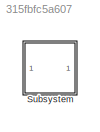
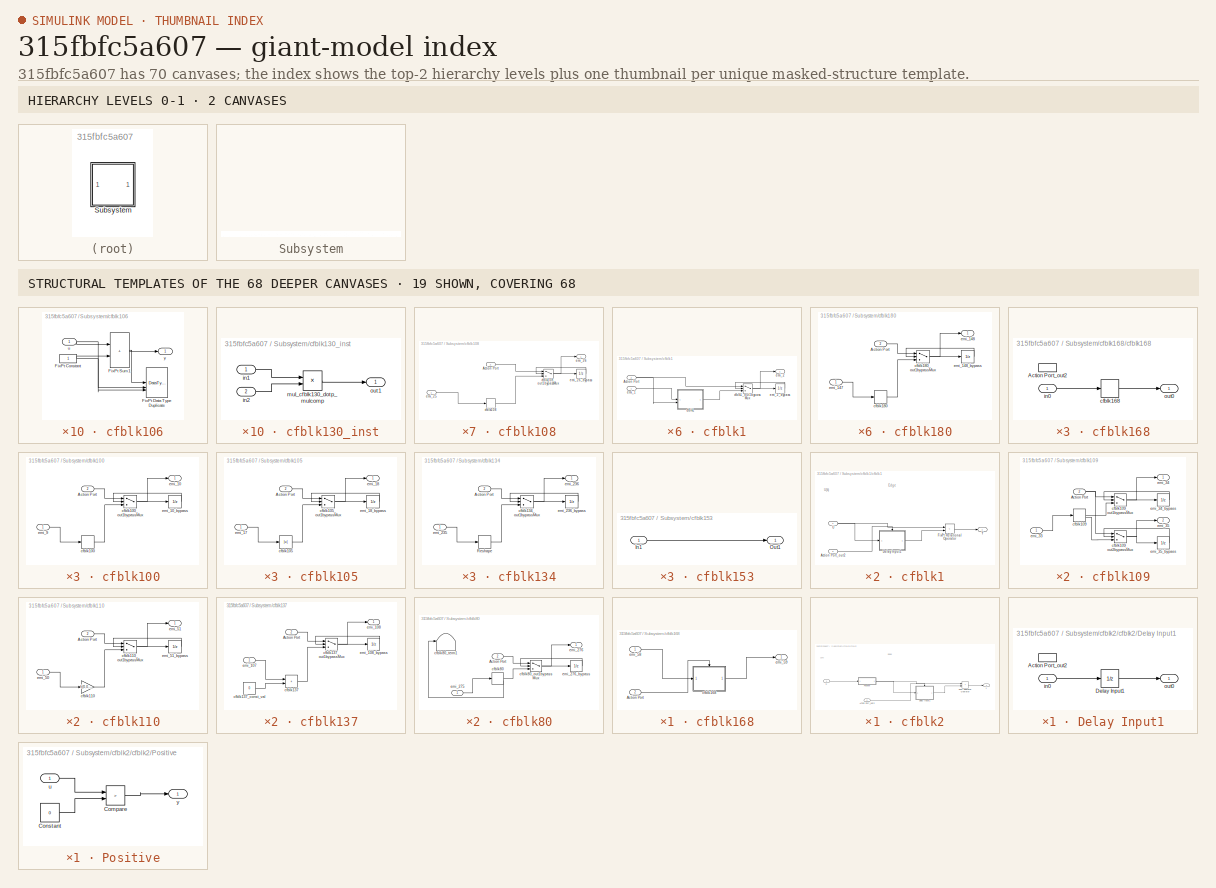
[diagram: thumbnail index - top-2 hierarchy levels (2 canvases) + 19 structural-template representatives of the remaining 68 canvases]
MODEL slx_315fbfc5a607
KIND model
CONFIG AbsTol = auto
CONFIG EnableMultiTasking = off
CONFIG FixedStep = auto
CONFIG MaxStep = auto
CONFIG MinStep = auto
CONFIG RelTol = 1e-3
CONFIG SampleTimeConstraint = Unconstrained
CONFIG SolverName = VariableStepAuto
CONFIG StartTime = 0.0
CONFIG StopTime = 10.0
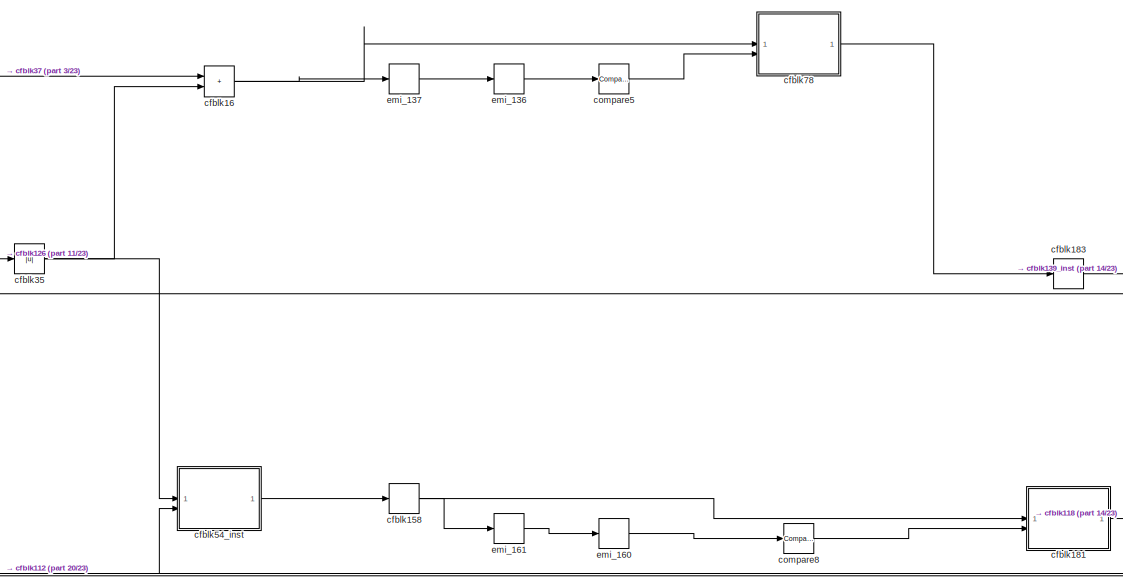
[diagram: Subsystem - part 1/23, right side, full height]
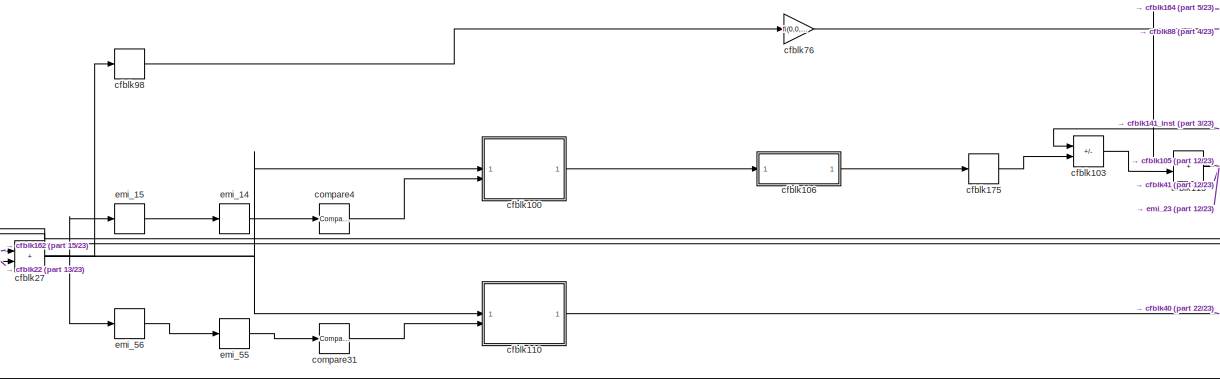
[diagram: Subsystem - part 2/23, central region]
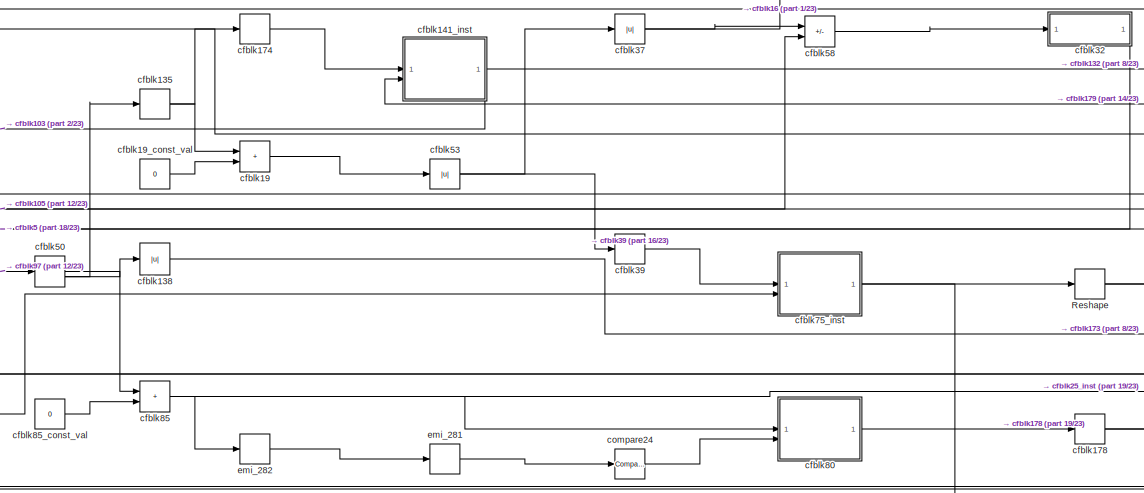
[diagram: Subsystem - part 3/23, central region]
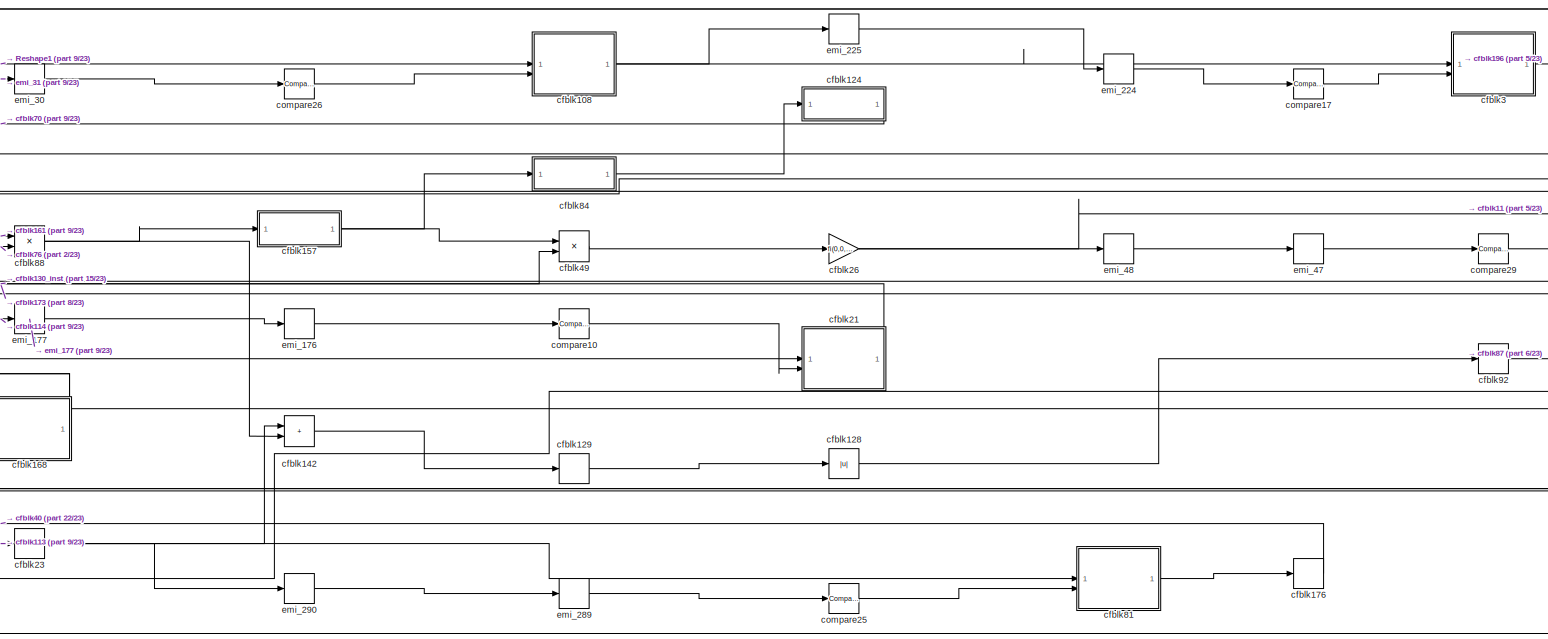
[diagram: Subsystem - part 4/23, right side, full height]
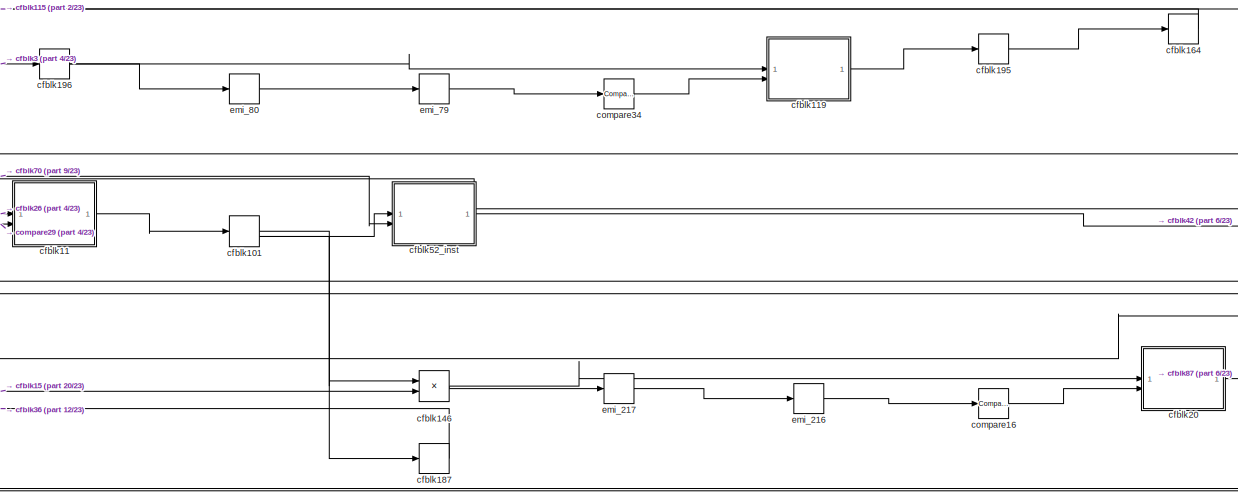
[diagram: Subsystem - part 5/23, middle right region]
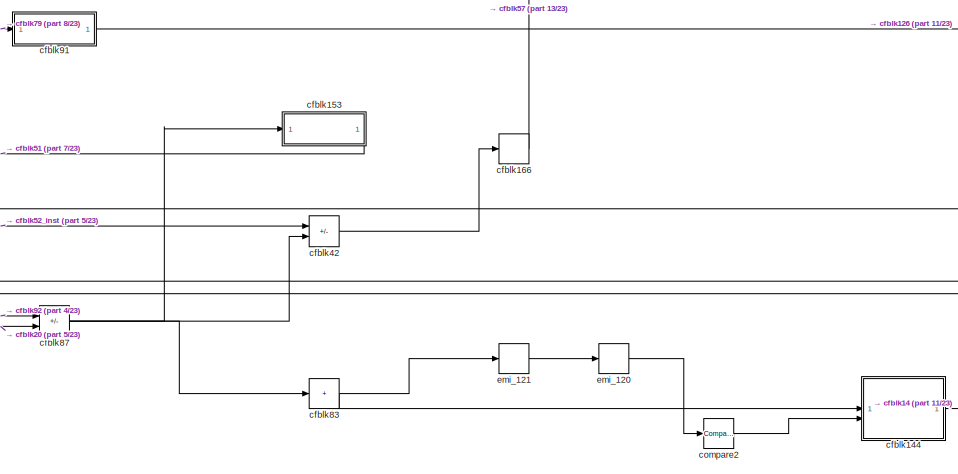
[diagram: Subsystem - part 6/23, middle right region]
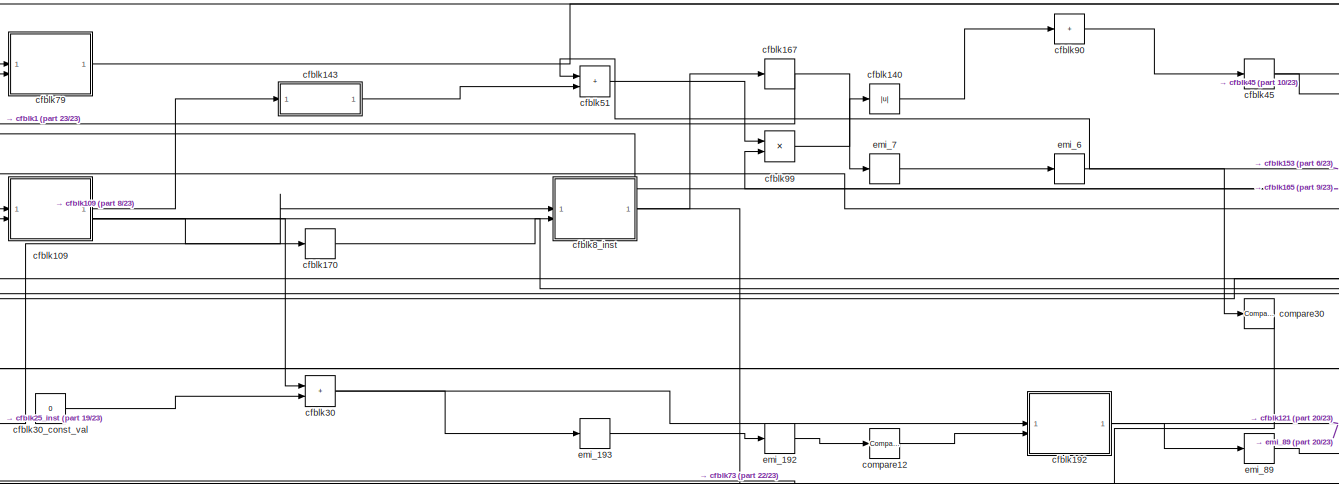
[diagram: Subsystem - part 7/23, central region]
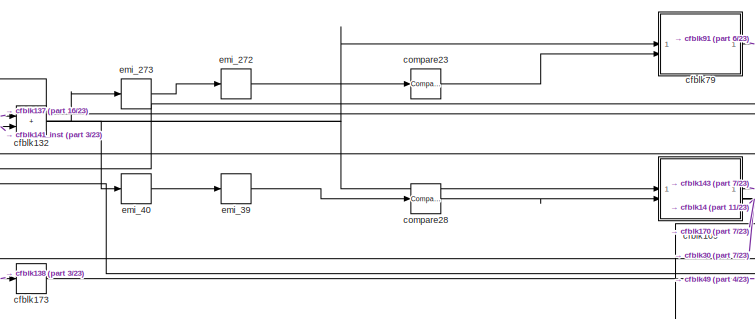
[diagram: Subsystem - part 8/23, central region]
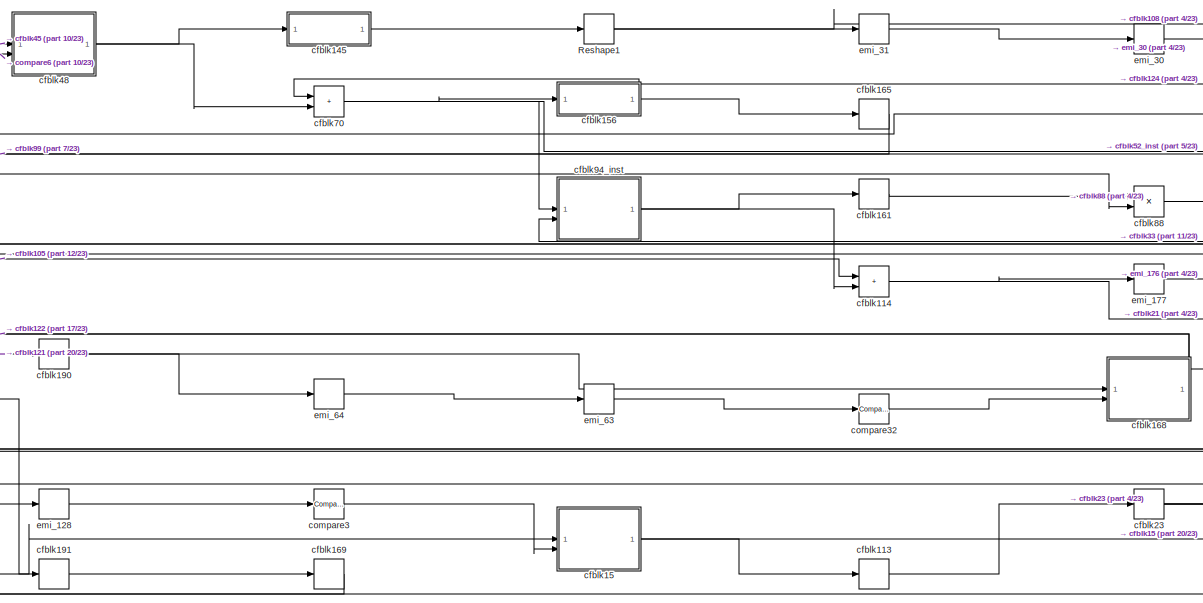
[diagram: Subsystem - part 9/23, center side, full height]
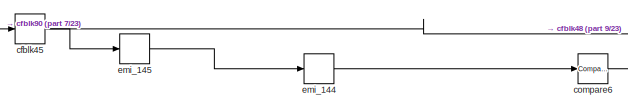
[diagram: Subsystem - part 10/23, top center region]
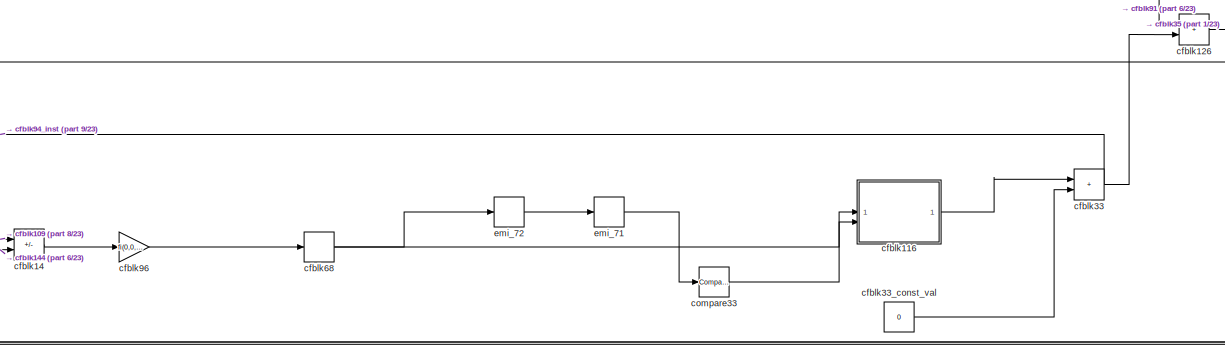
[diagram: Subsystem - part 11/23, middle right region]
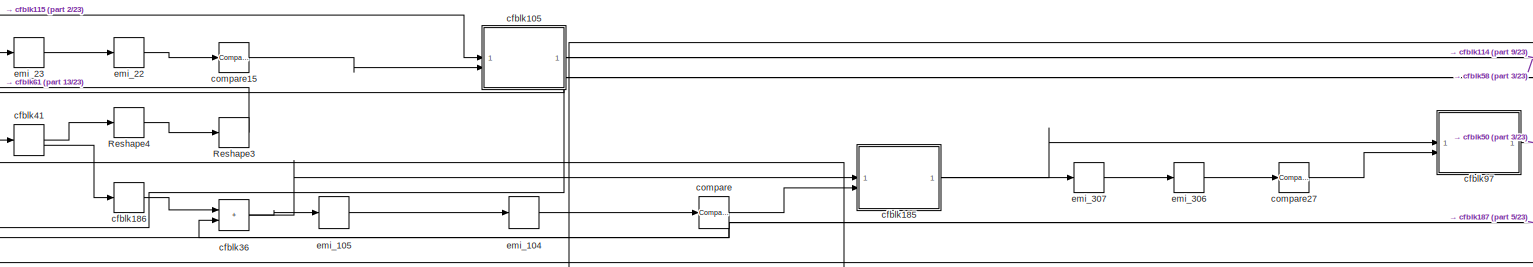
[diagram: Subsystem - part 12/23, central region]
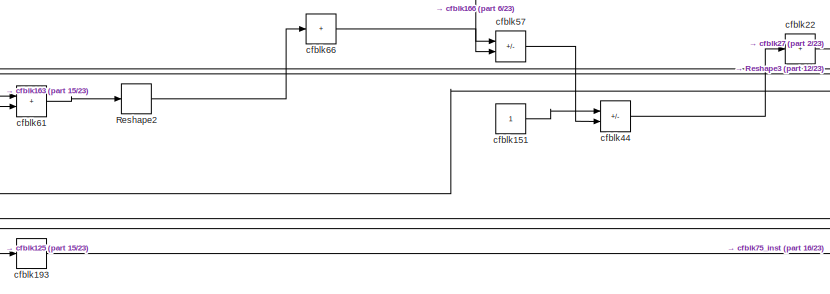
[diagram: Subsystem - part 13/23, middle left region]
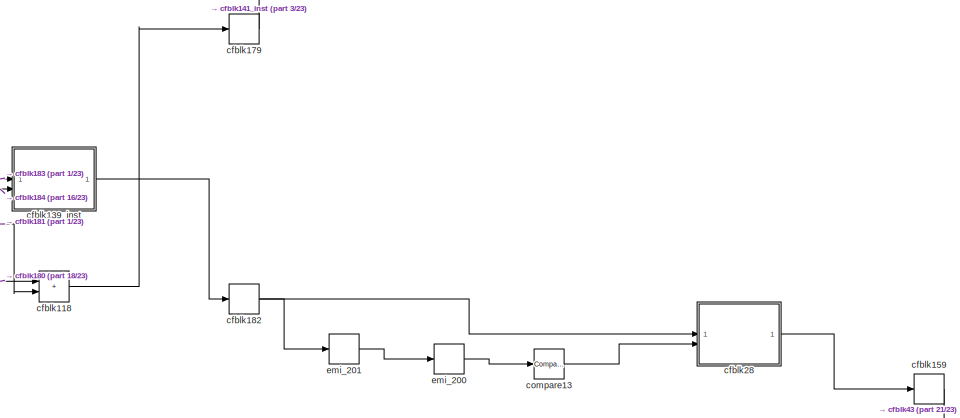
[diagram: Subsystem - part 14/23, bottom right region]
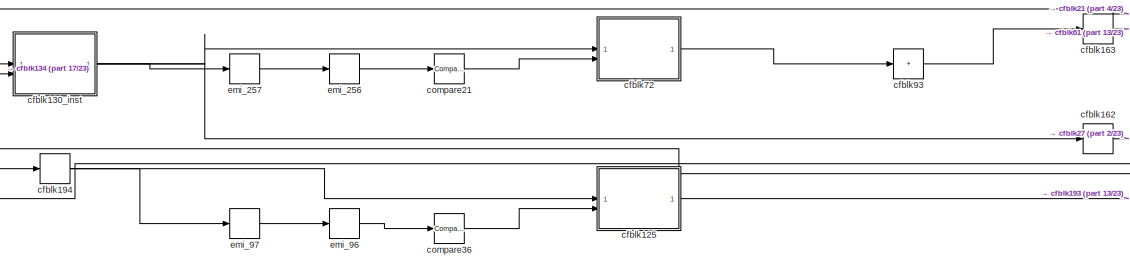
[diagram: Subsystem - part 15/23, middle left region]
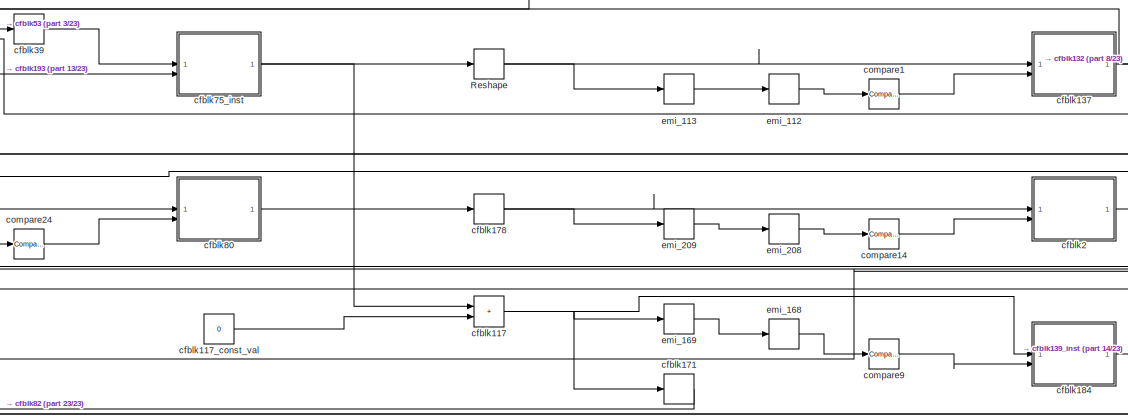
[diagram: Subsystem - part 16/23, bottom center region]
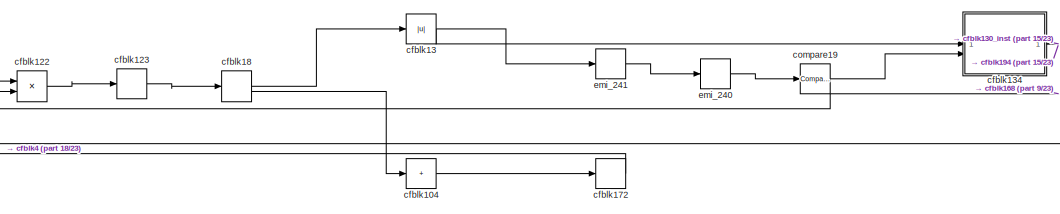
[diagram: Subsystem - part 17/23, middle left region]
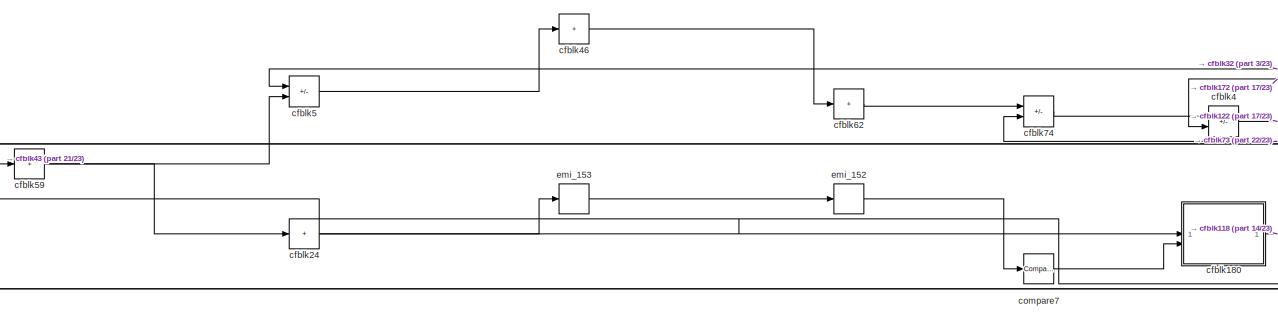
[diagram: Subsystem - part 18/23, bottom left region]
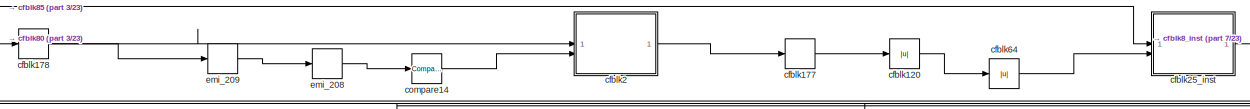
[diagram: Subsystem - part 19/23, bottom center region]
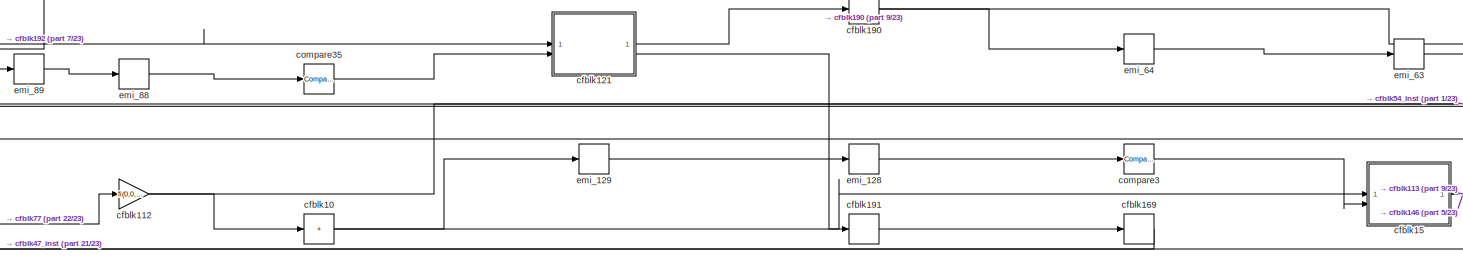
[diagram: Subsystem - part 20/23, bottom center region]
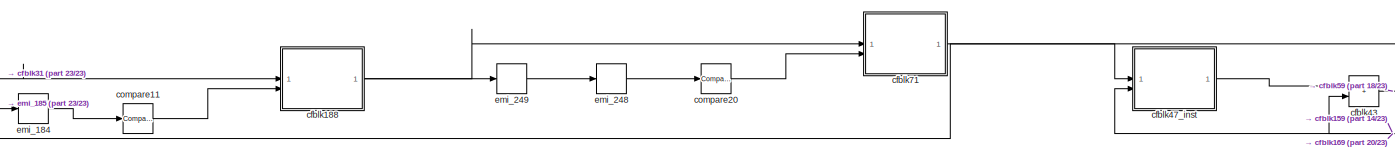
[diagram: Subsystem - part 21/23, bottom left region]
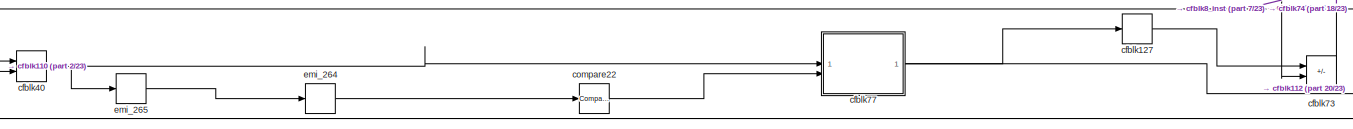
[diagram: Subsystem - part 22/23, bottom center region]
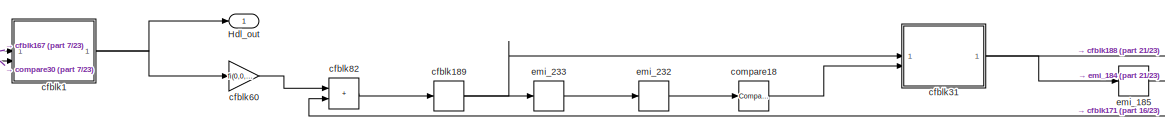
[diagram: Subsystem - part 23/23, bottom left region]
BLOCK [SubSystem] Subsystem
BLOCK [Outport] Subsystem/Hdl_out
  OutDataTypeStr = uint8
  SampleTime = 1
BLOCK [Reshape] Subsystem/Reshape
BLOCK [Reshape] Subsystem/Reshape1
BLOCK [Reshape] Subsystem/Reshape2
BLOCK [Reshape] Subsystem/Reshape3
BLOCK [Reshape] Subsystem/Reshape4
BLOCK [SubSystem] Subsystem/cfblk1
BLOCK [Inport] Subsystem/cfblk1/Action Port
  OutDataTypeStr = boolean
  Port = 2
  SampleTime = 1
BLOCK [SubSystem] Subsystem/cfblk1/cfblk1
BLOCK [Inport] Subsystem/cfblk1/cfblk1/Action Port_out2
  OutDataTypeStr = boolean
  Port = 2
  SampleTime = 1
BLOCK [SubSystem] Subsystem/cfblk1/cfblk1/Delay Input1
  MinAlgLoopOccurrences = on
BLOCK [EnablePort] Subsystem/cfblk1/cfblk1/Delay Input1/Action Port_out2
  OutDataTypeStr = boolean
BLOCK [Delay] Subsystem/cfblk1/cfblk1/Delay Input1/Delay Input1
  DelayLength = double(1)
  InitialCondition = 0
  InputPortMap = u0
BLOCK [Inport] Subsystem/cfblk1/cfblk1/Delay Input1/in0
  OutDataTypeStr = uint8
  SampleTime = 1
BLOCK [Outport] Subsystem/cfblk1/cfblk1/Delay Input1/out0
  InitialOutput = 0
  OutDataTypeStr = uint8
  SampleTime = 1
BLOCK [RelationalOperator] Subsystem/cfblk1/cfblk1/FixPt Relational Operator
  InputSameDT = off
  Operator = <
  OutDataTypeStr = fixdt(0,8,0)
  SampleTime = 1
BLOCK [Inport] Subsystem/cfblk1/cfblk1/U
  OutDataTypeStr = uint8
  SampleTime = 1
BLOCK [Outport] Subsystem/cfblk1/cfblk1/Y
  InitialOutput = 0
  SampleTime = 1
BLOCK [MultiPortSwitch] Subsystem/cfblk1/cfblk1_out1bypassMux
  DataPortOrder = Zero-based contiguous
  InputSameDT = off
  Inputs = 2
  OutDataTypeStr = uint8
  SampleTime = 1
  SaturateOnIntegerOverflow = off
  zeroidx = on
BLOCK [Inport] Subsystem/cfblk1/emi_1
  OutDataTypeStr = uint8
  PortDimensions = 1
  SampleTime = 1
BLOCK [Outport] Subsystem/cfblk1/emi_2
  InitialOutput = 0
  SampleTime = 1
BLOCK [UnitDelay] Subsystem/cfblk1/emi_2_bypass
  InitialCondition = fi(0,0,8,0,"hex","00")
  SampleTime = 1
BLOCK [Sum] Subsystem/cfblk10
  IconShape = rectangular
  Inputs = +
  OutDataTypeStr = uint8
BLOCK [SubSystem] Subsystem/cfblk100
BLOCK [Inport] Subsystem/cfblk100/Action Port
  OutDataTypeStr = boolean
  Port = 2
  SampleTime = 1
BLOCK [Signum] Subsystem/cfblk100/cfblk100
  SampleTime = 1
BLOCK [MultiPortSwitch] Subsystem/cfblk100/cfblk100_out1bypassMux
  DataPortOrder = Zero-based contiguous
  InputSameDT = off
  Inputs = 2
  OutDataTypeStr = uint8
  SampleTime = 1
  SaturateOnIntegerOverflow = off
  zeroidx = on
BLOCK [Outport] Subsystem/cfblk100/emi_10
  InitialOutput = 0
  SampleTime = 1
BLOCK [UnitDelay] Subsystem/cfblk100/emi_10_bypass
  InitialCondition = fi(0,0,8,0,"hex","00")
  SampleTime = 1
BLOCK [Inport] Subsystem/cfblk100/emi_9
  OutDataTypeStr = uint8
  PortDimensions = 1
  SampleTime = 1
BLOCK [ComplexToRealImag] Subsystem/cfblk101
  SampleTime = 1
BLOCK [Sum] Subsystem/cfblk103
  AccumDataTypeStr = uint8
  IconShape = rectangular
  Inputs = +-
  OutDataTypeStr = uint8
  SampleTime = 1
BLOCK [Sum] Subsystem/cfblk104
  IconShape = rectangular
  Inputs = +
  OutDataTypeStr = uint8
BLOCK [SubSystem] Subsystem/cfblk105
BLOCK [Inport] Subsystem/cfblk105/Action Port
  OutDataTypeStr = boolean
  Port = 2
  SampleTime = 1
BLOCK [Abs] Subsystem/cfblk105/cfblk105
  OutDataTypeStr = uint8
  SampleTime = 1
  SaturateOnIntegerOverflow = off
BLOCK [MultiPortSwitch] Subsystem/cfblk105/cfblk105_out1bypassMux
  DataPortOrder = Zero-based contiguous
  InputSameDT = off
  Inputs = 2
  OutDataTypeStr = uint8
  SampleTime = 1
  SaturateOnIntegerOverflow = off
  zeroidx = on
BLOCK [Inport] Subsystem/cfblk105/emi_17
  OutDataTypeStr = uint8
  PortDimensions = 1
  SampleTime = 1
BLOCK [Outport] Subsystem/cfblk105/emi_18
  InitialOutput = 0
  SampleTime = 1
BLOCK [UnitDelay] Subsystem/cfblk105/emi_18_bypass
  InitialCondition = fi(0,0,8,0,"hex","00")
  SampleTime = 1
BLOCK [SubSystem] Subsystem/cfblk106
BLOCK [Constant] Subsystem/cfblk106/FixPt Constant
  DisableCoverage = on
  OutDataTypeStr = Inherit: Inherit via back propagation
  SampleTime = -1
BLOCK [DataTypeDuplicate] Subsystem/cfblk106/FixPt Data Type Duplicate
  DisableCoverage = on
  NumInputPorts = 3
BLOCK [Sum] Subsystem/cfblk106/FixPt Sum1
  IconShape = rectangular
  InputSameDT = on
  LockScale = on
  OutDataTypeStr = Inherit: Inherit via back propagation
BLOCK [Inport] Subsystem/cfblk106/u
  OutDataTypeStr = uint8
  SampleTime = 1
BLOCK [Outport] Subsystem/cfblk106/y
  SampleTime = 1
BLOCK [SubSystem] Subsystem/cfblk108
BLOCK [Inport] Subsystem/cfblk108/Action Port
  OutDataTypeStr = boolean
  Port = 2
  SampleTime = 1
BLOCK [MinMax] Subsystem/cfblk108/cfblk108
BLOCK [MultiPortSwitch] Subsystem/cfblk108/cfblk108_out1bypassMux
  DataPortOrder = Zero-based contiguous
  InputSameDT = off
  Inputs = 2
  OutDataTypeStr = uint8
  SampleTime = 1
  SaturateOnIntegerOverflow = off
  zeroidx = on
BLOCK [Inport] Subsystem/cfblk108/emi_25
  OutDataTypeStr = uint8
  PortDimensions = 1
  SampleTime = 1
BLOCK [Outport] Subsystem/cfblk108/emi_26
  InitialOutput = 0
  SampleTime = 1
BLOCK [UnitDelay] Subsystem/cfblk108/emi_26_bypass
  InitialCondition = fi(0,0,8,0,"hex","00")
  SampleTime = 1
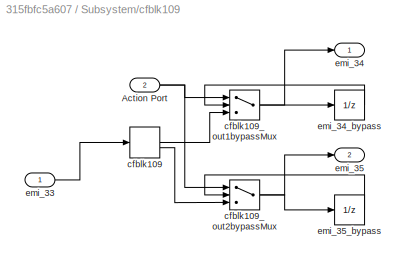
BLOCK [SubSystem] Subsystem/cfblk109
BLOCK [Inport] Subsystem/cfblk109/Action Port
  OutDataTypeStr = boolean
  Port = 2
  SampleTime = 1
BLOCK [ComplexToRealImag] Subsystem/cfblk109/cfblk109
  SampleTime = 1
BLOCK [MultiPortSwitch] Subsystem/cfblk109/cfblk109_out1bypassMux
  DataPortOrder = Zero-based contiguous
  InputSameDT = off
  Inputs = 2
  OutDataTypeStr = uint8
  SampleTime = 1
  SaturateOnIntegerOverflow = off
  zeroidx = on
BLOCK [MultiPortSwitch] Subsystem/cfblk109/cfblk109_out2bypassMux
  DataPortOrder = Zero-based contiguous
  InputSameDT = off
  Inputs = 2
  OutDataTypeStr = uint8
  SampleTime = 1
  SaturateOnIntegerOverflow = off
  zeroidx = on
BLOCK [Inport] Subsystem/cfblk109/emi_33
  OutDataTypeStr = uint8
  PortDimensions = 1
  SampleTime = 1
BLOCK [Outport] Subsystem/cfblk109/emi_34
  InitialOutput = 0
  SampleTime = 1
BLOCK [UnitDelay] Subsystem/cfblk109/emi_34_bypass
  InitialCondition = fi(0,0,8,0,"hex","00")
  SampleTime = 1
BLOCK [Outport] Subsystem/cfblk109/emi_35
  InitialOutput = 0
  Port = 2
  SampleTime = 1
BLOCK [UnitDelay] Subsystem/cfblk109/emi_35_bypass
  InitialCondition = fi(0,0,8,0,"hex","00")
  SampleTime = 1
BLOCK [SubSystem] Subsystem/cfblk11
BLOCK [Inport] Subsystem/cfblk11/Action Port
  OutDataTypeStr = boolean
  Port = 2
  SampleTime = 1
BLOCK [MinMax] Subsystem/cfblk11/cfblk11
BLOCK [MultiPortSwitch] Subsystem/cfblk11/cfblk11_out1bypassMux
  DataPortOrder = Zero-based contiguous
  InputSameDT = off
  Inputs = 2
  OutDataTypeStr = uint8
  SampleTime = 1
  SaturateOnIntegerOverflow = off
  zeroidx = on
BLOCK [Inport] Subsystem/cfblk11/emi_42
  OutDataTypeStr = uint8
  PortDimensions = 1
  SampleTime = 1
BLOCK [Outport] Subsystem/cfblk11/emi_43
  InitialOutput = 0
  SampleTime = 1
BLOCK [UnitDelay] Subsystem/cfblk11/emi_43_bypass
  InitialCondition = fi(0,0,8,0,"hex","00")
  SampleTime = 1
BLOCK [SubSystem] Subsystem/cfblk110
BLOCK [Inport] Subsystem/cfblk110/Action Port
  OutDataTypeStr = boolean
  Port = 2
  SampleTime = 1
BLOCK [Gain] Subsystem/cfblk110/cfblk110
  Gain = fi(0,0,8,7,"hex","80")
  OutDataTypeStr = fixdt(0, 16, 7)
  ParamDataTypeStr = fixdt(0, 8, 7)
  SampleTime = 1
BLOCK [MultiPortSwitch] Subsystem/cfblk110/cfblk110_out1bypassMux
  DataPortOrder = Zero-based contiguous
  InputSameDT = off
  Inputs = 2
  OutDataTypeStr = fixdt(0, 16, 7)
  SampleTime = 1
  SaturateOnIntegerOverflow = off
  zeroidx = on
BLOCK [Inport] Subsystem/cfblk110/emi_50
  OutDataTypeStr = uint8
  PortDimensions = 1
  SampleTime = 1
BLOCK [Outport] Subsystem/cfblk110/emi_51
  InitialOutput = 0
  SampleTime = 1
BLOCK [UnitDelay] Subsystem/cfblk110/emi_51_bypass
  InitialCondition = fi(0,0,16,7,"hex","0000")
  SampleTime = 1
BLOCK [Gain] Subsystem/cfblk112
  Gain = fi(0,0,8,7,"hex","80")
  OutDataTypeStr = uint8
  ParamDataTypeStr = fixdt(0, 8, 7)
  SampleTime = 1
BLOCK [MinMax] Subsystem/cfblk113
  OutDataTypeStr = uint8
BLOCK [Sum] Subsystem/cfblk114
  AccumDataTypeStr = uint8
  IconShape = rectangular
  OutDataTypeStr = uint8
  SampleTime = 1
BLOCK [Sum] Subsystem/cfblk115
  AccumDataTypeStr = uint8
  IconShape = rectangular
  OutDataTypeStr = uint8
  SampleTime = 1
BLOCK [SubSystem] Subsystem/cfblk116
BLOCK [Inport] Subsystem/cfblk116/Action Port
  OutDataTypeStr = boolean
  Port = 2
  SampleTime = 1
BLOCK [Abs] Subsystem/cfblk116/cfblk116
  OutDataTypeStr = uint8
  SampleTime = 1
  SaturateOnIntegerOverflow = off
BLOCK [MultiPortSwitch] Subsystem/cfblk116/cfblk116_out1bypassMux
  DataPortOrder = Zero-based contiguous
  InputSameDT = off
  Inputs = 2
  OutDataTypeStr = uint8
  SampleTime = 1
  SaturateOnIntegerOverflow = off
  zeroidx = on
BLOCK [Inport] Subsystem/cfblk116/emi_66
  OutDataTypeStr = uint8
  PortDimensions = 1
  SampleTime = 1
BLOCK [Outport] Subsystem/cfblk116/emi_67
  InitialOutput = 0
  SampleTime = 1
BLOCK [UnitDelay] Subsystem/cfblk116/emi_67_bypass
  InitialCondition = fi(0,0,8,0,"hex","00")
  SampleTime = 1
BLOCK [Sum] Subsystem/cfblk117
  AccumDataTypeStr = uint8
  IconShape = rectangular
  OutDataTypeStr = uint8
  RndMeth = Nearest
  SampleTime = 1
BLOCK [Constant] Subsystem/cfblk117_const_val
  OutDataTypeStr = uint8
  SampleTime = 1
  Value = 0
  VectorParams1D = off
BLOCK [Sum] Subsystem/cfblk118
  AccumDataTypeStr = uint8
  IconShape = rectangular
  OutDataTypeStr = uint8
  SampleTime = 1
BLOCK [SubSystem] Subsystem/cfblk119
BLOCK [Inport] Subsystem/cfblk119/Action Port
  OutDataTypeStr = boolean
  Port = 2
  SampleTime = 1
BLOCK [SubSystem] Subsystem/cfblk119/cfblk119
BLOCK [Constant] Subsystem/cfblk119/cfblk119/FixPt Constant
  DisableCoverage = on
  OutDataTypeStr = Inherit: Inherit via back propagation
  SampleTime = -1
BLOCK [DataTypeDuplicate] Subsystem/cfblk119/cfblk119/FixPt Data Type Duplicate
  DisableCoverage = on
  NumInputPorts = 3
BLOCK [Sum] Subsystem/cfblk119/cfblk119/FixPt Sum1
  IconShape = rectangular
  InputSameDT = on
  LockScale = on
  OutDataTypeStr = Inherit: Inherit via back propagation
BLOCK [Inport] Subsystem/cfblk119/cfblk119/u
  OutDataTypeStr = uint8
  SampleTime = 1
BLOCK [Outport] Subsystem/cfblk119/cfblk119/y
  InitialOutput = 0
  SampleTime = 1
BLOCK [MultiPortSwitch] Subsystem/cfblk119/cfblk119_out1bypassMux
  DataPortOrder = Zero-based contiguous
  InputSameDT = off
  Inputs = 2
  OutDataTypeStr = uint8
  SampleTime = 1
  SaturateOnIntegerOverflow = off
  zeroidx = on
BLOCK [Inport] Subsystem/cfblk119/emi_74
  OutDataTypeStr = uint8
  PortDimensions = 1
  SampleTime = 1
BLOCK [Outport] Subsystem/cfblk119/emi_75
  InitialOutput = 0
  SampleTime = 1
BLOCK [UnitDelay] Subsystem/cfblk119/emi_75_bypass
  InitialCondition = fi(0,0,8,0,"hex","00")
  SampleTime = 1
BLOCK [Abs] Subsystem/cfblk120
  OutDataTypeStr = uint8
  SampleTime = 1
  SaturateOnIntegerOverflow = off
BLOCK [SubSystem] Subsystem/cfblk121
BLOCK [Inport] Subsystem/cfblk121/Action Port
  OutDataTypeStr = boolean
  Port = 2
  SampleTime = 1
BLOCK [ComplexToRealImag] Subsystem/cfblk121/cfblk121
  SampleTime = 1
BLOCK [MultiPortSwitch] Subsystem/cfblk121/cfblk121_out1bypassMux
  DataPortOrder = Zero-based contiguous
  InputSameDT = off
  Inputs = 2
  OutDataTypeStr = uint8
  SampleTime = 1
  SaturateOnIntegerOverflow = off
  zeroidx = on
BLOCK [MultiPortSwitch] Subsystem/cfblk121/cfblk121_out2bypassMux
  DataPortOrder = Zero-based contiguous
  InputSameDT = off
  Inputs = 2
  OutDataTypeStr = uint8
  SampleTime = 1
  SaturateOnIntegerOverflow = off
  zeroidx = on
BLOCK [Inport] Subsystem/cfblk121/emi_82
  OutDataTypeStr = uint8
  PortDimensions = 1
  SampleTime = 1
BLOCK [Outport] Subsystem/cfblk121/emi_83
  InitialOutput = 0
  SampleTime = 1
BLOCK [UnitDelay] Subsystem/cfblk121/emi_83_bypass
  InitialCondition = fi(0,0,8,0,"hex","00")
  SampleTime = 1
BLOCK [Outport] Subsystem/cfblk121/emi_84
  InitialOutput = 0
  Port = 2
  SampleTime = 1
BLOCK [UnitDelay] Subsystem/cfblk121/emi_84_bypass
  InitialCondition = fi(0,0,8,0,"hex","00")
  SampleTime = 1
BLOCK [Product] Subsystem/cfblk122
  Inputs = */
  OutDataTypeStr = uint8
  RndMeth = Zero
  SampleTime = 1
  SaturateOnIntegerOverflow = on
BLOCK [Signum] Subsystem/cfblk123
  SampleTime = 1
BLOCK [SubSystem] Subsystem/cfblk124
BLOCK [Constant] Subsystem/cfblk124/FixPt Constant
  DisableCoverage = on
  OutDataTypeStr = Inherit: Inherit via back propagation
  SampleTime = -1
BLOCK [DataTypeDuplicate] Subsystem/cfblk124/FixPt Data Type Duplicate
  DisableCoverage = on
  NumInputPorts = 3
BLOCK [Sum] Subsystem/cfblk124/FixPt Sum1
  IconShape = rectangular
  InputSameDT = on
  LockScale = on
  OutDataTypeStr = Inherit: Inherit via back propagation
BLOCK [Inport] Subsystem/cfblk124/u
  OutDataTypeStr = uint8
  SampleTime = 1
BLOCK [Outport] Subsystem/cfblk124/y
  SampleTime = 1
BLOCK [SubSystem] Subsystem/cfblk125
BLOCK [Inport] Subsystem/cfblk125/Action Port
  OutDataTypeStr = boolean
  Port = 2
  SampleTime = 1
BLOCK [MinMax] Subsystem/cfblk125/cfblk125
BLOCK [MultiPortSwitch] Subsystem/cfblk125/cfblk125_out1bypassMux
  DataPortOrder = Zero-based contiguous
  InputSameDT = off
  Inputs = 2
  OutDataTypeStr = uint8
  SampleTime = 1
  SaturateOnIntegerOverflow = off
  zeroidx = on
BLOCK [Inport] Subsystem/cfblk125/emi_91
  OutDataTypeStr = uint8
  PortDimensions = 1
  SampleTime = 1
BLOCK [Outport] Subsystem/cfblk125/emi_92
  InitialOutput = 0
  SampleTime = 1
BLOCK [UnitDelay] Subsystem/cfblk125/emi_92_bypass
  InitialCondition = fi(0,0,8,0,"hex","00")
  SampleTime = 1
BLOCK [Sum] Subsystem/cfblk126
  AccumDataTypeStr = uint8
  IconShape = rectangular
  OutDataTypeStr = uint8
  SampleTime = 1
BLOCK [MinMax] Subsystem/cfblk127
  OutDataTypeStr = uint8
BLOCK [Abs] Subsystem/cfblk128
  OutDataTypeStr = uint8
  SampleTime = 1
  SaturateOnIntegerOverflow = off
BLOCK [MinMax] Subsystem/cfblk129
  OutDataTypeStr = uint8
BLOCK [Abs] Subsystem/cfblk13
  OutDataTypeStr = uint8
  SampleTime = 1
  SaturateOnIntegerOverflow = off
BLOCK [SubSystem] Subsystem/cfblk130_inst
BLOCK [Inport] Subsystem/cfblk130_inst/in1
  OutDataTypeStr = uint8
  SampleTime = 1
BLOCK [Inport] Subsystem/cfblk130_inst/in2
  OutDataTypeStr = uint8
  Port = 2
  SampleTime = 1
BLOCK [Product] Subsystem/cfblk130_inst/mul_cfblk130_dotp_mulcomp
  Inputs = **
  OutDataTypeStr = uint8
  SampleTime = 1
BLOCK [Outport] Subsystem/cfblk130_inst/out1
  OutDataTypeStr = uint8
  SampleTime = 1
BLOCK [Sum] Subsystem/cfblk132
  AccumDataTypeStr = uint8
  IconShape = rectangular
  OutDataTypeStr = uint8
  SampleTime = 1
BLOCK [SubSystem] Subsystem/cfblk134
BLOCK [Inport] Subsystem/cfblk134/Action Port
  OutDataTypeStr = boolean
  Port = 2
  SampleTime = 1
BLOCK [Reshape] Subsystem/cfblk134/Reshape
BLOCK [MultiPortSwitch] Subsystem/cfblk134/cfblk134_out1bypassMux
  DataPortOrder = Zero-based contiguous
  InputSameDT = off
  Inputs = 2
  OutDataTypeStr = uint8
  SampleTime = 1
  SaturateOnIntegerOverflow = off
  zeroidx = on
BLOCK [Inport] Subsystem/cfblk134/emi_235
  OutDataTypeStr = uint8
  PortDimensions = 1
  SampleTime = 1
BLOCK [Outport] Subsystem/cfblk134/emi_236
  InitialOutput = 0
  SampleTime = 1
BLOCK [UnitDelay] Subsystem/cfblk134/emi_236_bypass
  InitialCondition = fi(0,0,8,0,"hex","00")
  SampleTime = 1
BLOCK [Signum] Subsystem/cfblk135
  SampleTime = 1
BLOCK [SubSystem] Subsystem/cfblk137
BLOCK [Inport] Subsystem/cfblk137/Action Port
  OutDataTypeStr = boolean
  Port = 2
  SampleTime = 1
BLOCK [Sum] Subsystem/cfblk137/cfblk137
  AccumDataTypeStr = uint8
  IconShape = rectangular
  OutDataTypeStr = uint8
  RndMeth = Nearest
  SampleTime = 1
BLOCK [Constant] Subsystem/cfblk137/cfblk137_const_val
  OutDataTypeStr = uint8
  SampleTime = 1
  Value = 0
  VectorParams1D = off
BLOCK [MultiPortSwitch] Subsystem/cfblk137/cfblk137_out1bypassMux
  DataPortOrder = Zero-based contiguous
  InputSameDT = off
  Inputs = 2
  OutDataTypeStr = uint8
  SampleTime = 1
  SaturateOnIntegerOverflow = off
  zeroidx = on
BLOCK [Inport] Subsystem/cfblk137/emi_107
  OutDataTypeStr = uint8
  PortDimensions = 1
  SampleTime = 1
BLOCK [Outport] Subsystem/cfblk137/emi_108
  InitialOutput = 0
  SampleTime = 1
BLOCK [UnitDelay] Subsystem/cfblk137/emi_108_bypass
  InitialCondition = fi(0,0,8,0,"hex","00")
  SampleTime = 1
BLOCK [Abs] Subsystem/cfblk138
  OutDataTypeStr = uint8
  SampleTime = 1
  SaturateOnIntegerOverflow = off
BLOCK [SubSystem] Subsystem/cfblk139_inst
BLOCK [Inport] Subsystem/cfblk139_inst/in1
  OutDataTypeStr = uint8
  SampleTime = 1
BLOCK [Inport] Subsystem/cfblk139_inst/in2
  OutDataTypeStr = uint8
  Port = 2
  SampleTime = 1
BLOCK [Product] Subsystem/cfblk139_inst/mul_cfblk139_dotp_mulcomp
  Inputs = **
  OutDataTypeStr = uint8
  SampleTime = 1
BLOCK [Outport] Subsystem/cfblk139_inst/out1
  OutDataTypeStr = uint8
  SampleTime = 1
BLOCK [Sum] Subsystem/cfblk14
  AccumDataTypeStr = uint8
  IconShape = rectangular
  Inputs = +-
  OutDataTypeStr = uint8
  SampleTime = 1
BLOCK [Abs] Subsystem/cfblk140
  OutDataTypeStr = uint8
  SampleTime = 1
  SaturateOnIntegerOverflow = off
BLOCK [SubSystem] Subsystem/cfblk141_inst
BLOCK [Inport] Subsystem/cfblk141_inst/in1
  OutDataTypeStr = uint8
  SampleTime = 1
BLOCK [Inport] Subsystem/cfblk141_inst/in2
  OutDataTypeStr = uint8
  Port = 2
  SampleTime = 1
BLOCK [Product] Subsystem/cfblk141_inst/mul_cfblk141_dotp_mulcomp
  Inputs = **
  OutDataTypeStr = uint8
  SampleTime = 1
BLOCK [Outport] Subsystem/cfblk141_inst/out1
  OutDataTypeStr = uint8
  SampleTime = 1
BLOCK [Sum] Subsystem/cfblk142
  AccumDataTypeStr = uint8
  IconShape = rectangular
  OutDataTypeStr = uint8
  SampleTime = 1
BLOCK [SubSystem] Subsystem/cfblk143
BLOCK [Constant] Subsystem/cfblk143/FixPt Constant
  DisableCoverage = on
  OutDataTypeStr = Inherit: Inherit via back propagation
  SampleTime = -1
BLOCK [DataTypeDuplicate] Subsystem/cfblk143/FixPt Data Type Duplicate
  DisableCoverage = on
  NumInputPorts = 3
BLOCK [Sum] Subsystem/cfblk143/FixPt Sum1
  IconShape = rectangular
  InputSameDT = on
  LockScale = on
  OutDataTypeStr = Inherit: Inherit via back propagation
BLOCK [Inport] Subsystem/cfblk143/u
  OutDataTypeStr = uint8
  SampleTime = 1
BLOCK [Outport] Subsystem/cfblk143/y
  SampleTime = 1
BLOCK [SubSystem] Subsystem/cfblk144
BLOCK [Inport] Subsystem/cfblk144/Action Port
  OutDataTypeStr = boolean
  Port = 2
  SampleTime = 1
BLOCK [Reshape] Subsystem/cfblk144/Reshape
BLOCK [MultiPortSwitch] Subsystem/cfblk144/cfblk144_out1bypassMux
  DataPortOrder = Zero-based contiguous
  InputSameDT = off
  Inputs = 2
  OutDataTypeStr = uint8
  SampleTime = 1
  SaturateOnIntegerOverflow = off
  zeroidx = on
BLOCK [Inport] Subsystem/cfblk144/emi_115
  OutDataTypeStr = uint8
  PortDimensions = 1
  SampleTime = 1
BLOCK [Outport] Subsystem/cfblk144/emi_116
  InitialOutput = 0
  SampleTime = 1
BLOCK [UnitDelay] Subsystem/cfblk144/emi_116_bypass
  InitialCondition = fi(0,0,8,0,"hex","00")
  SampleTime = 1
BLOCK [SubSystem] Subsystem/cfblk145
BLOCK [Constant] Subsystem/cfblk145/FixPt Constant
  DisableCoverage = on
  OutDataTypeStr = Inherit: Inherit via back propagation
  SampleTime = -1
BLOCK [DataTypeDuplicate] Subsystem/cfblk145/FixPt Data Type Duplicate
  DisableCoverage = on
  NumInputPorts = 3
BLOCK [Sum] Subsystem/cfblk145/FixPt Sum1
  IconShape = rectangular
  InputSameDT = on
  LockScale = on
  OutDataTypeStr = Inherit: Inherit via back propagation
BLOCK [Inport] Subsystem/cfblk145/u
  OutDataTypeStr = uint8
  SampleTime = 1
BLOCK [Outport] Subsystem/cfblk145/y
  SampleTime = 1
BLOCK [Product] Subsystem/cfblk146
  Inputs = */
  OutDataTypeStr = uint8
  RndMeth = Zero
  SampleTime = 1
  SaturateOnIntegerOverflow = on
BLOCK [SubSystem] Subsystem/cfblk15
BLOCK [Inport] Subsystem/cfblk15/Action Port
  OutDataTypeStr = boolean
  Port = 2
  SampleTime = 1
BLOCK [MinMax] Subsystem/cfblk15/cfblk15
BLOCK [MultiPortSwitch] Subsystem/cfblk15/cfblk15_out1bypassMux
  DataPortOrder = Zero-based contiguous
  InputSameDT = off
  Inputs = 2
  OutDataTypeStr = uint8
  SampleTime = 1
  SaturateOnIntegerOverflow = off
  zeroidx = on
BLOCK [Inport] Subsystem/cfblk15/emi_123
  OutDataTypeStr = uint8
  PortDimensions = 1
  SampleTime = 1
BLOCK [Outport] Subsystem/cfblk15/emi_124
  InitialOutput = 0
  SampleTime = 1
BLOCK [UnitDelay] Subsystem/cfblk15/emi_124_bypass
  InitialCondition = fi(0,0,8,0,"hex","00")
  SampleTime = 1
BLOCK [Constant] Subsystem/cfblk151
  OutDataTypeStr = uint8
  SampleTime = 1
BLOCK [SubSystem] Subsystem/cfblk153
BLOCK [Inport] Subsystem/cfblk153/In1
  OutDataTypeStr = uint8
  PortDimensions = 1
  SampleTime = 1
BLOCK [Outport] Subsystem/cfblk153/Out1
  InitialOutput = [0]
  SampleTime = 1
BLOCK [SubSystem] Subsystem/cfblk156
BLOCK [Inport] Subsystem/cfblk156/In1
  OutDataTypeStr = uint8
  PortDimensions = 1
  SampleTime = 1
BLOCK [Outport] Subsystem/cfblk156/Out1
  InitialOutput = [0]
  SampleTime = 1
BLOCK [SubSystem] Subsystem/cfblk157
BLOCK [Inport] Subsystem/cfblk157/In1
  OutDataTypeStr = uint8
  PortDimensions = 1
  SampleTime = 1
BLOCK [Outport] Subsystem/cfblk157/Out1
  InitialOutput = [0]
  SampleTime = 1
BLOCK [Delay] Subsystem/cfblk158
  DelayLength = double(2)
  InitialCondition = 0
  InputPortMap = u0
  SampleTime = 1
BLOCK [Delay] Subsystem/cfblk159
  DelayLength = double(2)
  InitialCondition = 0
  InputPortMap = u0
  SampleTime = 1
BLOCK [Sum] Subsystem/cfblk16
  AccumDataTypeStr = uint8
  IconShape = rectangular
  OutDataTypeStr = uint8
  SampleTime = 1
BLOCK [Delay] Subsystem/cfblk161
  DelayLength = double(2)
  InitialCondition = 0
  InputPortMap = u0
  SampleTime = 1
BLOCK [Delay] Subsystem/cfblk162
  DelayLength = double(2)
  InitialCondition = 0
  InputPortMap = u0
  SampleTime = 1
BLOCK [Delay] Subsystem/cfblk163
  DelayLength = double(2)
  InitialCondition = 0
  InputPortMap = u0
  SampleTime = 1
BLOCK [Delay] Subsystem/cfblk164
  DelayLength = double(2)
  InitialCondition = 0
  InputPortMap = u0
  SampleTime = 1
BLOCK [Delay] Subsystem/cfblk165
  DelayLength = double(2)
  InitialCondition = 0
  InputPortMap = u0
  SampleTime = 1
BLOCK [Delay] Subsystem/cfblk166
  DelayLength = double(2)
  InitialCondition = 0
  InputPortMap = u0
  SampleTime = 1
BLOCK [Delay] Subsystem/cfblk167
  DelayLength = double(2)
  InitialCondition = 0
  InputPortMap = u0
  SampleTime = 1
BLOCK [SubSystem] Subsystem/cfblk168
BLOCK [Inport] Subsystem/cfblk168/Action Port
  OutDataTypeStr = boolean
  Port = 2
  SampleTime = 1
BLOCK [SubSystem] Subsystem/cfblk168/cfblk168
  MinAlgLoopOccurrences = on
BLOCK [EnablePort] Subsystem/cfblk168/cfblk168/Action Port_out2
  OutDataTypeStr = boolean
BLOCK [Delay] Subsystem/cfblk168/cfblk168/cfblk168
  DelayLength = double(2)
  InitialCondition = 0
  InputPortMap = u0
BLOCK [Inport] Subsystem/cfblk168/cfblk168/in0
  OutDataTypeStr = uint8
  SampleTime = 1
BLOCK [Outport] Subsystem/cfblk168/cfblk168/out0
  InitialOutput = 0
  OutDataTypeStr = uint8
  SampleTime = 1
BLOCK [Inport] Subsystem/cfblk168/emi_58
  OutDataTypeStr = uint8
  PortDimensions = 1
  SampleTime = 1
BLOCK [Outport] Subsystem/cfblk168/emi_59
  InitialOutput = 0
  SampleTime = 1
BLOCK [Delay] Subsystem/cfblk169
  DelayLength = double(2)
  InitialCondition = 0
  InputPortMap = u0
  SampleTime = 1
BLOCK [Delay] Subsystem/cfblk170
  DelayLength = double(2)
  InitialCondition = 0
  InputPortMap = u0
  SampleTime = 1
BLOCK [Delay] Subsystem/cfblk171
  DelayLength = double(2)
  InitialCondition = 0
  InputPortMap = u0
  SampleTime = 1
BLOCK [Delay] Subsystem/cfblk172
  DelayLength = double(2)
  InitialCondition = 0
  InputPortMap = u0
  SampleTime = 1
BLOCK [Delay] Subsystem/cfblk173
  DelayLength = double(2)
  InitialCondition = 0
  InputPortMap = u0
  SampleTime = 1
BLOCK [Delay] Subsystem/cfblk174
  DelayLength = double(2)
  InitialCondition = 0
  InputPortMap = u0
  SampleTime = 1
BLOCK [Delay] Subsystem/cfblk175
  DelayLength = double(2)
  InitialCondition = 0
  InputPortMap = u0
  SampleTime = 1
BLOCK [Delay] Subsystem/cfblk176
  DelayLength = double(2)
  InitialCondition = 0
  InputPortMap = u0
  SampleTime = 1
BLOCK [DataTypeConversion] Subsystem/cfblk177
  OutDataTypeStr = fixdt(0,8,0)
BLOCK [DataTypeConversion] Subsystem/cfblk178
  OutDataTypeStr = fixdt(0,8,0)
BLOCK [DataTypeConversion] Subsystem/cfblk179
  OutDataTypeStr = fixdt(0,8,0)
BLOCK [ComplexToRealImag] Subsystem/cfblk18
  SampleTime = 1
BLOCK [SubSystem] Subsystem/cfblk180
BLOCK [Inport] Subsystem/cfblk180/Action Port
  OutDataTypeStr = boolean
  Port = 2
  SampleTime = 1
BLOCK [DataTypeConversion] Subsystem/cfblk180/cfblk180
  OutDataTypeStr = fixdt(0,8,0)
BLOCK [MultiPortSwitch] Subsystem/cfblk180/cfblk180_out1bypassMux
  DataPortOrder = Zero-based contiguous
  InputSameDT = off
  Inputs = 2
  OutDataTypeStr = uint8
  SampleTime = 1
  SaturateOnIntegerOverflow = off
  zeroidx = on
BLOCK [Inport] Subsystem/cfblk180/emi_147
  OutDataTypeStr = uint8
  PortDimensions = 1
  SampleTime = 1
BLOCK [Outport] Subsystem/cfblk180/emi_148
  InitialOutput = 0
  SampleTime = 1
BLOCK [UnitDelay] Subsystem/cfblk180/emi_148_bypass
  InitialCondition = fi(0,0,8,0,"hex","00")
  SampleTime = 1
BLOCK [SubSystem] Subsystem/cfblk181
BLOCK [Inport] Subsystem/cfblk181/Action Port
  OutDataTypeStr = boolean
  Port = 2
  SampleTime = 1
BLOCK [DataTypeConversion] Subsystem/cfblk181/cfblk181
  OutDataTypeStr = fixdt(0,8,0)
BLOCK [MultiPortSwitch] Subsystem/cfblk181/cfblk181_out1bypassMux
  DataPortOrder = Zero-based contiguous
  InputSameDT = off
  Inputs = 2
  OutDataTypeStr = uint8
  SampleTime = 1
  SaturateOnIntegerOverflow = off
  zeroidx = on
BLOCK [Inport] Subsystem/cfblk181/emi_155
  OutDataTypeStr = uint8
  PortDimensions = 1
  SampleTime = 1
BLOCK [Outport] Subsystem/cfblk181/emi_156
  InitialOutput = 0
  SampleTime = 1
BLOCK [UnitDelay] Subsystem/cfblk181/emi_156_bypass
  InitialCondition = fi(0,0,8,0,"hex","00")
  SampleTime = 1
BLOCK [DataTypeConversion] Subsystem/cfblk182
  OutDataTypeStr = fixdt(0,8,0)
BLOCK [DataTypeConversion] Subsystem/cfblk183
  OutDataTypeStr = fixdt(0,8,0)
BLOCK [SubSystem] Subsystem/cfblk184
BLOCK [Inport] Subsystem/cfblk184/Action Port
  OutDataTypeStr = boolean
  Port = 2
  SampleTime = 1
BLOCK [DataTypeConversion] Subsystem/cfblk184/cfblk184
  OutDataTypeStr = fixdt(0,8,0)
BLOCK [MultiPortSwitch] Subsystem/cfblk184/cfblk184_out1bypassMux
  DataPortOrder = Zero-based contiguous
  InputSameDT = off
  Inputs = 2
  OutDataTypeStr = uint8
  SampleTime = 1
  SaturateOnIntegerOverflow = off
  zeroidx = on
BLOCK [Inport] Subsystem/cfblk184/emi_163
  OutDataTypeStr = uint8
  PortDimensions = 1
  SampleTime = 1
BLOCK [Outport] Subsystem/cfblk184/emi_164
  InitialOutput = 0
  SampleTime = 1
BLOCK [UnitDelay] Subsystem/cfblk184/emi_164_bypass
  InitialCondition = fi(0,0,8,0,"hex","00")
  SampleTime = 1
BLOCK [SubSystem] Subsystem/cfblk185
BLOCK [Inport] Subsystem/cfblk185/Action Port
  OutDataTypeStr = boolean
  Port = 2
  SampleTime = 1
BLOCK [DataTypeConversion] Subsystem/cfblk185/cfblk185
  OutDataTypeStr = fixdt(0,8,0)
BLOCK [MultiPortSwitch] Subsystem/cfblk185/cfblk185_out1bypassMux
  DataPortOrder = Zero-based contiguous
  InputSameDT = off
  Inputs = 2
  OutDataTypeStr = uint8
  SampleTime = 1
  SaturateOnIntegerOverflow = off
  zeroidx = on
BLOCK [Outport] Subsystem/cfblk185/emi_100
  InitialOutput = 0
  SampleTime = 1
BLOCK [UnitDelay] Subsystem/cfblk185/emi_100_bypass
  InitialCondition = fi(0,0,8,0,"hex","00")
  SampleTime = 1
BLOCK [Inport] Subsystem/cfblk185/emi_99
  OutDataTypeStr = uint8
  PortDimensions = 1
  SampleTime = 1
BLOCK [DataTypeConversion] Subsystem/cfblk186
  OutDataTypeStr = fixdt(0,8,0)
BLOCK [DataTypeConversion] Subsystem/cfblk187
  OutDataTypeStr = fixdt(0,8,0)
BLOCK [SubSystem] Subsystem/cfblk188
BLOCK [Inport] Subsystem/cfblk188/Action Port
  OutDataTypeStr = boolean
  Port = 2
  SampleTime = 1
BLOCK [DataTypeConversion] Subsystem/cfblk188/cfblk188
  OutDataTypeStr = uint8
  RndMeth = Floor
  SampleTime = 1
  SaturateOnIntegerOverflow = off
BLOCK [MultiPortSwitch] Subsystem/cfblk188/cfblk188_out1bypassMux
  DataPortOrder = Zero-based contiguous
  InputSameDT = off
  Inputs = 2
  OutDataTypeStr = uint8
  SampleTime = 1
  SaturateOnIntegerOverflow = off
  zeroidx = on
BLOCK [Inport] Subsystem/cfblk188/emi_179
  OutDataTypeStr = fixdt(0, 16, 7)
  PortDimensions = 1
  SampleTime = 1
BLOCK [Outport] Subsystem/cfblk188/emi_180
  InitialOutput = 0
  SampleTime = 1
BLOCK [UnitDelay] Subsystem/cfblk188/emi_180_bypass
  InitialCondition = fi(0,0,8,0,"hex","00")
  SampleTime = 1
BLOCK [DataTypeConversion] Subsystem/cfblk189
  OutDataTypeStr = fixdt(0,8,0)
BLOCK [Sum] Subsystem/cfblk19
  AccumDataTypeStr = uint8
  IconShape = rectangular
  OutDataTypeStr = uint8
  RndMeth = Nearest
  SampleTime = 1
BLOCK [DataTypeConversion] Subsystem/cfblk190
  OutDataTypeStr = fixdt(0,8,0)
BLOCK [DataTypeConversion] Subsystem/cfblk191
  OutDataTypeStr = fixdt(0,8,0)
BLOCK [SubSystem] Subsystem/cfblk192
BLOCK [Inport] Subsystem/cfblk192/Action Port
  OutDataTypeStr = boolean
  Port = 2
  SampleTime = 1
BLOCK [DataTypeConversion] Subsystem/cfblk192/cfblk192
  OutDataTypeStr = fixdt(0,8,0)
BLOCK [MultiPortSwitch] Subsystem/cfblk192/cfblk192_out1bypassMux
  DataPortOrder = Zero-based contiguous
  InputSameDT = off
  Inputs = 2
  OutDataTypeStr = uint8
  SampleTime = 1
  SaturateOnIntegerOverflow = off
  zeroidx = on
BLOCK [Inport] Subsystem/cfblk192/emi_187
  OutDataTypeStr = uint8
  PortDimensions = 1
  SampleTime = 1
BLOCK [Outport] Subsystem/cfblk192/emi_188
  InitialOutput = 0
  SampleTime = 1
BLOCK [UnitDelay] Subsystem/cfblk192/emi_188_bypass
  InitialCondition = fi(0,0,8,0,"hex","00")
  SampleTime = 1
BLOCK [DataTypeConversion] Subsystem/cfblk193
  OutDataTypeStr = fixdt(0,8,0)
BLOCK [DataTypeConversion] Subsystem/cfblk194
  OutDataTypeStr = fixdt(0,8,0)
BLOCK [DataTypeConversion] Subsystem/cfblk195
  OutDataTypeStr = fixdt(0,8,0)
BLOCK [DataTypeConversion] Subsystem/cfblk196
  OutDataTypeStr = fixdt(0,8,0)
BLOCK [Constant] Subsystem/cfblk19_const_val
  OutDataTypeStr = uint8
  SampleTime = 1
  Value = 0
  VectorParams1D = off
BLOCK [SubSystem] Subsystem/cfblk2
BLOCK [Inport] Subsystem/cfblk2/Action Port
  OutDataTypeStr = boolean
  Port = 2
  SampleTime = 1
BLOCK [SubSystem] Subsystem/cfblk2/cfblk2
BLOCK [Inport] Subsystem/cfblk2/cfblk2/Action Port_out2
  OutDataTypeStr = boolean
  Port = 2
  SampleTime = 1
BLOCK [SubSystem] Subsystem/cfblk2/cfblk2/Delay Input1
  MinAlgLoopOccurrences = on
BLOCK [EnablePort] Subsystem/cfblk2/cfblk2/Delay Input1/Action Port_out2
  OutDataTypeStr = boolean
BLOCK [UnitDelay] Subsystem/cfblk2/cfblk2/Delay Input1/Delay Input1
  SampleTime = 1
BLOCK [Inport] Subsystem/cfblk2/cfblk2/Delay Input1/in0
  OutDataTypeStr = boolean
  SampleTime = 1
BLOCK [Outport] Subsystem/cfblk2/cfblk2/Delay Input1/out0
  InitialOutput = 0
  OutDataTypeStr = boolean
  SampleTime = 1
BLOCK [RelationalOperator] Subsystem/cfblk2/cfblk2/FixPt Relational Operator
  InputSameDT = off
  Operator = >
  OutDataTypeStr = fixdt(0,8,0)
  SampleTime = 1
BLOCK [SubSystem] Subsystem/cfblk2/cfblk2/Positive
BLOCK [RelationalOperator] Subsystem/cfblk2/cfblk2/Positive/Compare
  Operator = >
  OutDataTypeStr = boolean
  SampleTime = 1
BLOCK [Constant] Subsystem/cfblk2/cfblk2/Positive/Constant
  OutDataTypeStr = uint8
  SampleTime = 1
  Value = 0
BLOCK [Inport] Subsystem/cfblk2/cfblk2/Positive/u
  OutDataTypeStr = uint8
  SampleTime = 1
BLOCK [Outport] Subsystem/cfblk2/cfblk2/Positive/y
  InitialOutput = 0
  SampleTime = 1
BLOCK [Inport] Subsystem/cfblk2/cfblk2/U
  OutDataTypeStr = uint8
  SampleTime = 1
BLOCK [Outport] Subsystem/cfblk2/cfblk2/Y
  InitialOutput = 0
  SampleTime = 1
BLOCK [MultiPortSwitch] Subsystem/cfblk2/cfblk2_out1bypassMux
  DataPortOrder = Zero-based contiguous
  InputSameDT = off
  Inputs = 2
  OutDataTypeStr = uint8
  SampleTime = 1
  SaturateOnIntegerOverflow = off
  zeroidx = on
BLOCK [Inport] Subsystem/cfblk2/emi_203
  OutDataTypeStr = uint8
  PortDimensions = 1
  SampleTime = 1
BLOCK [Outport] Subsystem/cfblk2/emi_204
  InitialOutput = 0
  SampleTime = 1
BLOCK [UnitDelay] Subsystem/cfblk2/emi_204_bypass
  InitialCondition = fi(0,0,8,0,"hex","00")
  SampleTime = 1
BLOCK [SubSystem] Subsystem/cfblk20
BLOCK [Inport] Subsystem/cfblk20/Action Port
  OutDataTypeStr = boolean
  Port = 2
  SampleTime = 1
BLOCK [Signum] Subsystem/cfblk20/cfblk20
  SampleTime = 1
BLOCK [MultiPortSwitch] Subsystem/cfblk20/cfblk20_out1bypassMux
  DataPortOrder = Zero-based contiguous
  InputSameDT = off
  Inputs = 2
  OutDataTypeStr = uint8
  SampleTime = 1
  SaturateOnIntegerOverflow = off
  zeroidx = on
BLOCK [Inport] Subsystem/cfblk20/emi_211
  OutDataTypeStr = uint8
  PortDimensions = 1
  SampleTime = 1
BLOCK [Outport] Subsystem/cfblk20/emi_212
  InitialOutput = 0
  SampleTime = 1
BLOCK [UnitDelay] Subsystem/cfblk20/emi_212_bypass
  InitialCondition = fi(0,0,8,0,"hex","00")
  SampleTime = 1
BLOCK [SubSystem] Subsystem/cfblk21
BLOCK [Inport] Subsystem/cfblk21/Action Port
  OutDataTypeStr = boolean
  Port = 2
  SampleTime = 1
BLOCK [Sum] Subsystem/cfblk21/cfblk21
  AccumDataTypeStr = uint8
  IconShape = rectangular
  OutDataTypeStr = uint8
  RndMeth = Nearest
  SampleTime = 1
BLOCK [Constant] Subsystem/cfblk21/cfblk21_const_val
  OutDataTypeStr = uint8
  SampleTime = 1
  Value = 0
  VectorParams1D = off
BLOCK [MultiPortSwitch] Subsystem/cfblk21/cfblk21_out1bypassMux
  DataPortOrder = Zero-based contiguous
  InputSameDT = off
  Inputs = 2
  OutDataTypeStr = uint8
  SampleTime = 1
  SaturateOnIntegerOverflow = off
  zeroidx = on
BLOCK [Inport] Subsystem/cfblk21/emi_171
  OutDataTypeStr = uint8
  PortDimensions = 1
  SampleTime = 1
BLOCK [Outport] Subsystem/cfblk21/emi_172
  InitialOutput = 0
  SampleTime = 1
BLOCK [UnitDelay] Subsystem/cfblk21/emi_172_bypass
  InitialCondition = fi(0,0,8,0,"hex","00")
  SampleTime = 1
BLOCK [Sum] Subsystem/cfblk22
  IconShape = rectangular
  Inputs = +
  OutDataTypeStr = uint8
BLOCK [Signum] Subsystem/cfblk23
  SampleTime = 1
BLOCK [Sum] Subsystem/cfblk24
  IconShape = rectangular
  Inputs = +
  OutDataTypeStr = uint8
BLOCK [SubSystem] Subsystem/cfblk25_inst
BLOCK [Inport] Subsystem/cfblk25_inst/in1
  OutDataTypeStr = uint8
  SampleTime = 1
BLOCK [Inport] Subsystem/cfblk25_inst/in2
  OutDataTypeStr = uint8
  Port = 2
  SampleTime = 1
BLOCK [Product] Subsystem/cfblk25_inst/mul_cfblk25_dotp_mulcomp
  Inputs = **
  OutDataTypeStr = uint8
  SampleTime = 1
BLOCK [Outport] Subsystem/cfblk25_inst/out1
  OutDataTypeStr = uint8
  SampleTime = 1
BLOCK [Gain] Subsystem/cfblk26
  Gain = fi(0,0,8,7,"hex","80")
  OutDataTypeStr = uint8
  ParamDataTypeStr = fixdt(0, 8, 7)
  SampleTime = 1
BLOCK [Sum] Subsystem/cfblk27
  AccumDataTypeStr = uint8
  IconShape = rectangular
  OutDataTypeStr = uint8
  SampleTime = 1
BLOCK [SubSystem] Subsystem/cfblk28
BLOCK [Inport] Subsystem/cfblk28/Action Port
  OutDataTypeStr = boolean
  Port = 2
  SampleTime = 1
BLOCK [SubSystem] Subsystem/cfblk28/cfblk28
BLOCK [Constant] Subsystem/cfblk28/cfblk28/FixPt Constant
  DisableCoverage = on
  OutDataTypeStr = Inherit: Inherit via back propagation
  SampleTime = -1
BLOCK [DataTypeDuplicate] Subsystem/cfblk28/cfblk28/FixPt Data Type Duplicate
  DisableCoverage = on
  NumInputPorts = 3
BLOCK [Sum] Subsystem/cfblk28/cfblk28/FixPt Sum1
  IconShape = rectangular
  InputSameDT = on
  LockScale = on
  OutDataTypeStr = Inherit: Inherit via back propagation
BLOCK [Inport] Subsystem/cfblk28/cfblk28/u
  OutDataTypeStr = uint8
  SampleTime = 1
BLOCK [Outport] Subsystem/cfblk28/cfblk28/y
  InitialOutput = 0
  SampleTime = 1
BLOCK [MultiPortSwitch] Subsystem/cfblk28/cfblk28_out1bypassMux
  DataPortOrder = Zero-based contiguous
  InputSameDT = off
  Inputs = 2
  OutDataTypeStr = uint8
  SampleTime = 1
  SaturateOnIntegerOverflow = off
  zeroidx = on
BLOCK [Inport] Subsystem/cfblk28/emi_195
  OutDataTypeStr = uint8
  PortDimensions = 1
  SampleTime = 1
BLOCK [Outport] Subsystem/cfblk28/emi_196
  InitialOutput = 0
  SampleTime = 1
BLOCK [UnitDelay] Subsystem/cfblk28/emi_196_bypass
  InitialCondition = fi(0,0,8,0,"hex","00")
  SampleTime = 1
BLOCK [SubSystem] Subsystem/cfblk3
BLOCK [Inport] Subsystem/cfblk3/Action Port
  OutDataTypeStr = boolean
  Port = 2
  SampleTime = 1
BLOCK [SubSystem] Subsystem/cfblk3/cfblk3
BLOCK [Inport] Subsystem/cfblk3/cfblk3/Action Port_out2
  OutDataTypeStr = boolean
  Port = 2
  SampleTime = 1
BLOCK [SubSystem] Subsystem/cfblk3/cfblk3/Delay Input1
  MinAlgLoopOccurrences = on
BLOCK [EnablePort] Subsystem/cfblk3/cfblk3/Delay Input1/Action Port_out2
  OutDataTypeStr = boolean
BLOCK [Delay] Subsystem/cfblk3/cfblk3/Delay Input1/Delay Input1
  DelayLength = double(1)
  InitialCondition = 0
  InputPortMap = u0
BLOCK [Inport] Subsystem/cfblk3/cfblk3/Delay Input1/in0
  OutDataTypeStr = uint8
  SampleTime = 1
BLOCK [Outport] Subsystem/cfblk3/cfblk3/Delay Input1/out0
  InitialOutput = 0
  OutDataTypeStr = uint8
  SampleTime = 1
BLOCK [RelationalOperator] Subsystem/cfblk3/cfblk3/FixPt Relational Operator
  InputSameDT = off
  Operator = ~=
  OutDataTypeStr = fixdt(0,8,0)
  SampleTime = 1
BLOCK [Inport] Subsystem/cfblk3/cfblk3/U
  OutDataTypeStr = uint8
  SampleTime = 1
BLOCK [Outport] Subsystem/cfblk3/cfblk3/Y
  InitialOutput = 0
  SampleTime = 1
BLOCK [MultiPortSwitch] Subsystem/cfblk3/cfblk3_out1bypassMux
  DataPortOrder = Zero-based contiguous
  InputSameDT = off
  Inputs = 2
  OutDataTypeStr = uint8
  SampleTime = 1
  SaturateOnIntegerOverflow = off
  zeroidx = on
BLOCK [Inport] Subsystem/cfblk3/emi_219
  OutDataTypeStr = uint8
  PortDimensions = 1
  SampleTime = 1
BLOCK [Outport] Subsystem/cfblk3/emi_220
  InitialOutput = 0
  SampleTime = 1
BLOCK [UnitDelay] Subsystem/cfblk3/emi_220_bypass
  InitialCondition = fi(0,0,8,0,"hex","00")
  SampleTime = 1
BLOCK [Sum] Subsystem/cfblk30
  AccumDataTypeStr = uint8
  IconShape = rectangular
  OutDataTypeStr = uint8
  RndMeth = Nearest
  SampleTime = 1
BLOCK [Constant] Subsystem/cfblk30_const_val
  OutDataTypeStr = uint8
  SampleTime = 1
  Value = 0
  VectorParams1D = off
BLOCK [SubSystem] Subsystem/cfblk31
BLOCK [Inport] Subsystem/cfblk31/Action Port
  OutDataTypeStr = boolean
  Port = 2
  SampleTime = 1
BLOCK [Gain] Subsystem/cfblk31/cfblk31
  Gain = fi(0,0,8,7,"hex","80")
  OutDataTypeStr = fixdt(0, 16, 7)
  ParamDataTypeStr = fixdt(0, 8, 7)
  SampleTime = 1
BLOCK [MultiPortSwitch] Subsystem/cfblk31/cfblk31_out1bypassMux
  DataPortOrder = Zero-based contiguous
  InputSameDT = off
  Inputs = 2
  OutDataTypeStr = fixdt(0, 16, 7)
  SampleTime = 1
  SaturateOnIntegerOverflow = off
  zeroidx = on
BLOCK [Inport] Subsystem/cfblk31/emi_227
  OutDataTypeStr = uint8
  PortDimensions = 1
  SampleTime = 1
BLOCK [Outport] Subsystem/cfblk31/emi_228
  InitialOutput = 0
  SampleTime = 1
BLOCK [UnitDelay] Subsystem/cfblk31/emi_228_bypass
  InitialCondition = fi(0,0,16,7,"hex","0000")
  SampleTime = 1
BLOCK [SubSystem] Subsystem/cfblk32
BLOCK [Constant] Subsystem/cfblk32/FixPt Constant
  DisableCoverage = on
  OutDataTypeStr = Inherit: Inherit via back propagation
  SampleTime = -1
BLOCK [DataTypeDuplicate] Subsystem/cfblk32/FixPt Data Type Duplicate
  DisableCoverage = on
  NumInputPorts = 3
BLOCK [Sum] Subsystem/cfblk32/FixPt Sum1
  IconShape = rectangular
  InputSameDT = on
  LockScale = on
  OutDataTypeStr = Inherit: Inherit via back propagation
BLOCK [Inport] Subsystem/cfblk32/u
  OutDataTypeStr = uint8
  SampleTime = 1
BLOCK [Outport] Subsystem/cfblk32/y
  SampleTime = 1
BLOCK [Sum] Subsystem/cfblk33
  AccumDataTypeStr = uint8
  IconShape = rectangular
  OutDataTypeStr = uint8
  RndMeth = Nearest
  SampleTime = 1
BLOCK [Constant] Subsystem/cfblk33_const_val
  OutDataTypeStr = uint8
  SampleTime = 1
  Value = 0
  VectorParams1D = off
BLOCK [Abs] Subsystem/cfblk35
  OutDataTypeStr = uint8
  SampleTime = 1
  SaturateOnIntegerOverflow = off
BLOCK [Sum] Subsystem/cfblk36
  AccumDataTypeStr = uint8
  IconShape = rectangular
  OutDataTypeStr = uint8
  SampleTime = 1
BLOCK [Abs] Subsystem/cfblk37
  OutDataTypeStr = uint8
  SampleTime = 1
  SaturateOnIntegerOverflow = off
BLOCK [Signum] Subsystem/cfblk39
  SampleTime = 1
BLOCK [Sum] Subsystem/cfblk4
  AccumDataTypeStr = uint8
  IconShape = rectangular
  Inputs = +-
  OutDataTypeStr = uint8
  SampleTime = 1
BLOCK [Sum] Subsystem/cfblk40
  AccumDataTypeStr = fixdt(1, 32, 7)
  IconShape = rectangular
  Inputs = +-
  OutDataTypeStr = uint8
  SampleTime = 1
BLOCK [ComplexToRealImag] Subsystem/cfblk41
  SampleTime = 1
BLOCK [Sum] Subsystem/cfblk42
  AccumDataTypeStr = uint8
  IconShape = rectangular
  Inputs = +-
  OutDataTypeStr = uint8
  SampleTime = 1
BLOCK [Sum] Subsystem/cfblk43
  AccumDataTypeStr = uint8
  IconShape = rectangular
  OutDataTypeStr = uint8
  SampleTime = 1
BLOCK [Sum] Subsystem/cfblk44
  AccumDataTypeStr = uint8
  IconShape = rectangular
  Inputs = +-
  OutDataTypeStr = uint8
  SampleTime = 1
BLOCK [Signum] Subsystem/cfblk45
  SampleTime = 1
BLOCK [Sum] Subsystem/cfblk46
  IconShape = rectangular
  Inputs = +
  OutDataTypeStr = uint8
BLOCK [SubSystem] Subsystem/cfblk47_inst
BLOCK [Inport] Subsystem/cfblk47_inst/in1
  OutDataTypeStr = uint8
  SampleTime = 1
BLOCK [Inport] Subsystem/cfblk47_inst/in2
  OutDataTypeStr = uint8
  Port = 2
  SampleTime = 1
BLOCK [Product] Subsystem/cfblk47_inst/mul_cfblk47_dotp_mulcomp
  Inputs = **
  OutDataTypeStr = uint8
  SampleTime = 1
BLOCK [Outport] Subsystem/cfblk47_inst/out1
  OutDataTypeStr = uint8
  SampleTime = 1
BLOCK [SubSystem] Subsystem/cfblk48
BLOCK [Inport] Subsystem/cfblk48/Action Port
  OutDataTypeStr = boolean
  Port = 2
  SampleTime = 1
BLOCK [Abs] Subsystem/cfblk48/cfblk48
  OutDataTypeStr = uint8
  SampleTime = 1
  SaturateOnIntegerOverflow = off
BLOCK [MultiPortSwitch] Subsystem/cfblk48/cfblk48_out1bypassMux
  DataPortOrder = Zero-based contiguous
  InputSameDT = off
  Inputs = 2
  OutDataTypeStr = uint8
  SampleTime = 1
  SaturateOnIntegerOverflow = off
  zeroidx = on
BLOCK [Inport] Subsystem/cfblk48/emi_139
  OutDataTypeStr = uint8
  PortDimensions = 1
  SampleTime = 1
BLOCK [Outport] Subsystem/cfblk48/emi_140
  InitialOutput = 0
  SampleTime = 1
BLOCK [UnitDelay] Subsystem/cfblk48/emi_140_bypass
  InitialCondition = fi(0,0,8,0,"hex","00")
  SampleTime = 1
BLOCK [Product] Subsystem/cfblk49
  Inputs = */
  OutDataTypeStr = uint8
  RndMeth = Zero
  SampleTime = 1
  SaturateOnIntegerOverflow = on
BLOCK [Sum] Subsystem/cfblk5
  AccumDataTypeStr = uint8
  IconShape = rectangular
  Inputs = +-
  OutDataTypeStr = uint8
  SampleTime = 1
BLOCK [ComplexToRealImag] Subsystem/cfblk50
  SampleTime = 1
BLOCK [Sum] Subsystem/cfblk51
  AccumDataTypeStr = uint8
  IconShape = rectangular
  OutDataTypeStr = uint8
  SampleTime = 1
BLOCK [SubSystem] Subsystem/cfblk52_inst
BLOCK [Inport] Subsystem/cfblk52_inst/in1
  OutDataTypeStr = uint8
  SampleTime = 1
BLOCK [Inport] Subsystem/cfblk52_inst/in2
  OutDataTypeStr = uint8
  Port = 2
  SampleTime = 1
BLOCK [Product] Subsystem/cfblk52_inst/mul_cfblk52_dotp_mulcomp
  Inputs = **
  OutDataTypeStr = uint8
  SampleTime = 1
BLOCK [Outport] Subsystem/cfblk52_inst/out1
  OutDataTypeStr = uint8
  SampleTime = 1
BLOCK [Abs] Subsystem/cfblk53
  OutDataTypeStr = uint8
  SampleTime = 1
  SaturateOnIntegerOverflow = off
BLOCK [SubSystem] Subsystem/cfblk54_inst
BLOCK [Inport] Subsystem/cfblk54_inst/in1
  OutDataTypeStr = uint8
  SampleTime = 1
BLOCK [Inport] Subsystem/cfblk54_inst/in2
  OutDataTypeStr = uint8
  Port = 2
  SampleTime = 1
BLOCK [Product] Subsystem/cfblk54_inst/mul_cfblk54_dotp_mulcomp
  Inputs = **
  OutDataTypeStr = uint8
  SampleTime = 1
BLOCK [Outport] Subsystem/cfblk54_inst/out1
  OutDataTypeStr = uint8
  SampleTime = 1
BLOCK [Sum] Subsystem/cfblk57
  AccumDataTypeStr = uint8
  IconShape = rectangular
  Inputs = +-
  OutDataTypeStr = uint8
  SampleTime = 1
BLOCK [Sum] Subsystem/cfblk58
  AccumDataTypeStr = uint8
  IconShape = rectangular
  Inputs = +-
  OutDataTypeStr = uint8
  SampleTime = 1
BLOCK [Sum] Subsystem/cfblk59
  IconShape = rectangular
  Inputs = +
  OutDataTypeStr = uint8
BLOCK [Gain] Subsystem/cfblk60
  Gain = fi(0,0,8,7,"hex","80")
  OutDataTypeStr = uint8
  ParamDataTypeStr = fixdt(0, 8, 7)
  SampleTime = 1
BLOCK [Sum] Subsystem/cfblk61
  AccumDataTypeStr = uint8
  IconShape = rectangular
  OutDataTypeStr = uint8
  SampleTime = 1
BLOCK [Sum] Subsystem/cfblk62
  IconShape = rectangular
  Inputs = +
  OutDataTypeStr = uint8
BLOCK [Abs] Subsystem/cfblk64
  OutDataTypeStr = uint8
  SampleTime = 1
  SaturateOnIntegerOverflow = off
BLOCK [Sum] Subsystem/cfblk66
  IconShape = rectangular
  Inputs = +
  OutDataTypeStr = uint8
BLOCK [MinMax] Subsystem/cfblk68
  OutDataTypeStr = uint8
BLOCK [Sum] Subsystem/cfblk70
  AccumDataTypeStr = uint8
  IconShape = rectangular
  OutDataTypeStr = uint8
  SampleTime = 1
BLOCK [SubSystem] Subsystem/cfblk71
BLOCK [Inport] Subsystem/cfblk71/Action Port
  OutDataTypeStr = boolean
  Port = 2
  SampleTime = 1
BLOCK [Reshape] Subsystem/cfblk71/Reshape
BLOCK [MultiPortSwitch] Subsystem/cfblk71/cfblk71_out1bypassMux
  DataPortOrder = Zero-based contiguous
  InputSameDT = off
  Inputs = 2
  OutDataTypeStr = uint8
  SampleTime = 1
  SaturateOnIntegerOverflow = off
  zeroidx = on
BLOCK [Inport] Subsystem/cfblk71/emi_243
  OutDataTypeStr = uint8
  PortDimensions = 1
  SampleTime = 1
BLOCK [Outport] Subsystem/cfblk71/emi_244
  InitialOutput = 0
  SampleTime = 1
BLOCK [UnitDelay] Subsystem/cfblk71/emi_244_bypass
  InitialCondition = fi(0,0,8,0,"hex","00")
  SampleTime = 1
BLOCK [SubSystem] Subsystem/cfblk72
BLOCK [Inport] Subsystem/cfblk72/Action Port
  OutDataTypeStr = boolean
  Port = 2
  SampleTime = 1
BLOCK [MinMax] Subsystem/cfblk72/cfblk72
BLOCK [MultiPortSwitch] Subsystem/cfblk72/cfblk72_out1bypassMux
  DataPortOrder = Zero-based contiguous
  InputSameDT = off
  Inputs = 2
  OutDataTypeStr = uint8
  SampleTime = 1
  SaturateOnIntegerOverflow = off
  zeroidx = on
BLOCK [Inport] Subsystem/cfblk72/emi_251
  OutDataTypeStr = uint8
  PortDimensions = 1
  SampleTime = 1
BLOCK [Outport] Subsystem/cfblk72/emi_252
  InitialOutput = 0
  SampleTime = 1
BLOCK [UnitDelay] Subsystem/cfblk72/emi_252_bypass
  InitialCondition = fi(0,0,8,0,"hex","00")
  SampleTime = 1
BLOCK [Sum] Subsystem/cfblk73
  AccumDataTypeStr = uint8
  IconShape = rectangular
  Inputs = +-
  OutDataTypeStr = uint8
  SampleTime = 1
BLOCK [Sum] Subsystem/cfblk74
  AccumDataTypeStr = uint8
  IconShape = rectangular
  Inputs = +-
  OutDataTypeStr = uint8
  SampleTime = 1
BLOCK [SubSystem] Subsystem/cfblk75_inst
BLOCK [Inport] Subsystem/cfblk75_inst/in1
  OutDataTypeStr = uint8
  SampleTime = 1
BLOCK [Inport] Subsystem/cfblk75_inst/in2
  OutDataTypeStr = uint8
  Port = 2
  SampleTime = 1
BLOCK [Product] Subsystem/cfblk75_inst/mul_cfblk75_dotp_mulcomp
  Inputs = **
  OutDataTypeStr = uint8
  SampleTime = 1
BLOCK [Outport] Subsystem/cfblk75_inst/out1
  OutDataTypeStr = uint8
  SampleTime = 1
BLOCK [Gain] Subsystem/cfblk76
  Gain = fi(0,0,8,7,"hex","80")
  OutDataTypeStr = uint8
  ParamDataTypeStr = fixdt(0, 8, 7)
  SampleTime = 1
BLOCK [SubSystem] Subsystem/cfblk77
BLOCK [Inport] Subsystem/cfblk77/Action Port
  OutDataTypeStr = boolean
  Port = 2
  SampleTime = 1
BLOCK [SubSystem] Subsystem/cfblk77/cfblk77
BLOCK [Constant] Subsystem/cfblk77/cfblk77/FixPt Constant
  DisableCoverage = on
  OutDataTypeStr = Inherit: Inherit via back propagation
  SampleTime = -1
BLOCK [DataTypeDuplicate] Subsystem/cfblk77/cfblk77/FixPt Data Type Duplicate
  DisableCoverage = on
  NumInputPorts = 3
BLOCK [Sum] Subsystem/cfblk77/cfblk77/FixPt Sum1
  IconShape = rectangular
  InputSameDT = on
  LockScale = on
  OutDataTypeStr = Inherit: Inherit via back propagation
BLOCK [Inport] Subsystem/cfblk77/cfblk77/u
  OutDataTypeStr = uint8
  SampleTime = 1
BLOCK [Outport] Subsystem/cfblk77/cfblk77/y
  InitialOutput = 0
  SampleTime = 1
BLOCK [MultiPortSwitch] Subsystem/cfblk77/cfblk77_out1bypassMux
  DataPortOrder = Zero-based contiguous
  InputSameDT = off
  Inputs = 2
  OutDataTypeStr = uint8
  SampleTime = 1
  SaturateOnIntegerOverflow = off
  zeroidx = on
BLOCK [Inport] Subsystem/cfblk77/emi_259
  OutDataTypeStr = uint8
  PortDimensions = 1
  SampleTime = 1
BLOCK [Outport] Subsystem/cfblk77/emi_260
  InitialOutput = 0
  SampleTime = 1
BLOCK [UnitDelay] Subsystem/cfblk77/emi_260_bypass
  InitialCondition = fi(0,0,8,0,"hex","00")
  SampleTime = 1
BLOCK [SubSystem] Subsystem/cfblk78
BLOCK [Inport] Subsystem/cfblk78/Action Port
  OutDataTypeStr = boolean
  Port = 2
  SampleTime = 1
BLOCK [Signum] Subsystem/cfblk78/cfblk78
  SampleTime = 1
BLOCK [MultiPortSwitch] Subsystem/cfblk78/cfblk78_out1bypassMux
  DataPortOrder = Zero-based contiguous
  InputSameDT = off
  Inputs = 2
  OutDataTypeStr = uint8
  SampleTime = 1
  SaturateOnIntegerOverflow = off
  zeroidx = on
BLOCK [Inport] Subsystem/cfblk78/emi_131
  OutDataTypeStr = uint8
  PortDimensions = 1
  SampleTime = 1
BLOCK [Outport] Subsystem/cfblk78/emi_132
  InitialOutput = 0
  SampleTime = 1
BLOCK [UnitDelay] Subsystem/cfblk78/emi_132_bypass
  InitialCondition = fi(0,0,8,0,"hex","00")
  SampleTime = 1
BLOCK [SubSystem] Subsystem/cfblk79
BLOCK [Inport] Subsystem/cfblk79/Action Port
  OutDataTypeStr = boolean
  Port = 2
  SampleTime = 1
BLOCK [MinMax] Subsystem/cfblk79/cfblk79
BLOCK [MultiPortSwitch] Subsystem/cfblk79/cfblk79_out1bypassMux
  DataPortOrder = Zero-based contiguous
  InputSameDT = off
  Inputs = 2
  OutDataTypeStr = uint8
  SampleTime = 1
  SaturateOnIntegerOverflow = off
  zeroidx = on
BLOCK [Inport] Subsystem/cfblk79/emi_267
  OutDataTypeStr = uint8
  PortDimensions = 1
  SampleTime = 1
BLOCK [Outport] Subsystem/cfblk79/emi_268
  InitialOutput = 0
  SampleTime = 1
BLOCK [UnitDelay] Subsystem/cfblk79/emi_268_bypass
  InitialCondition = fi(0,0,8,0,"hex","00")
  SampleTime = 1
BLOCK [SubSystem] Subsystem/cfblk80
BLOCK [Inport] Subsystem/cfblk80/Action Port
  OutDataTypeStr = boolean
  Port = 2
  SampleTime = 1
BLOCK [ComplexToRealImag] Subsystem/cfblk80/cfblk80
  SampleTime = 1
BLOCK [MultiPortSwitch] Subsystem/cfblk80/cfblk80_out1bypassMux
  DataPortOrder = Zero-based contiguous
  InputSameDT = off
  Inputs = 2
  OutDataTypeStr = uint8
  SampleTime = 1
  SaturateOnIntegerOverflow = off
  zeroidx = on
BLOCK [Terminator] Subsystem/cfblk80/cfblk80_term1
BLOCK [Inport] Subsystem/cfblk80/emi_275
  OutDataTypeStr = uint8
  PortDimensions = 1
  SampleTime = 1
BLOCK [Outport] Subsystem/cfblk80/emi_276
  InitialOutput = 0
  SampleTime = 1
BLOCK [UnitDelay] Subsystem/cfblk80/emi_276_bypass
  InitialCondition = fi(0,0,8,0,"hex","00")
  SampleTime = 1
BLOCK [SubSystem] Subsystem/cfblk81
BLOCK [Inport] Subsystem/cfblk81/Action Port
  OutDataTypeStr = boolean
  Port = 2
  SampleTime = 1
BLOCK [MinMax] Subsystem/cfblk81/cfblk81
BLOCK [MultiPortSwitch] Subsystem/cfblk81/cfblk81_out1bypassMux
  DataPortOrder = Zero-based contiguous
  InputSameDT = off
  Inputs = 2
  OutDataTypeStr = uint8
  SampleTime = 1
  SaturateOnIntegerOverflow = off
  zeroidx = on
BLOCK [Inport] Subsystem/cfblk81/emi_284
  OutDataTypeStr = uint8
  PortDimensions = 1
  SampleTime = 1
BLOCK [Outport] Subsystem/cfblk81/emi_285
  InitialOutput = 0
  SampleTime = 1
BLOCK [UnitDelay] Subsystem/cfblk81/emi_285_bypass
  InitialCondition = fi(0,0,8,0,"hex","00")
  SampleTime = 1
BLOCK [Sum] Subsystem/cfblk82
  AccumDataTypeStr = uint8
  IconShape = rectangular
  OutDataTypeStr = uint8
  SampleTime = 1
BLOCK [Sum] Subsystem/cfblk83
  IconShape = rectangular
  Inputs = +
  OutDataTypeStr = uint8
BLOCK [SubSystem] Subsystem/cfblk84
BLOCK [Constant] Subsystem/cfblk84/FixPt Constant
  DisableCoverage = on
  OutDataTypeStr = Inherit: Inherit via back propagation
  SampleTime = -1
BLOCK [DataTypeDuplicate] Subsystem/cfblk84/FixPt Data Type Duplicate
  DisableCoverage = on
  NumInputPorts = 3
BLOCK [Sum] Subsystem/cfblk84/FixPt Sum1
  IconShape = rectangular
  InputSameDT = on
  LockScale = on
  OutDataTypeStr = Inherit: Inherit via back propagation
BLOCK [Inport] Subsystem/cfblk84/u
  OutDataTypeStr = uint8
  SampleTime = 1
BLOCK [Outport] Subsystem/cfblk84/y
  SampleTime = 1
BLOCK [Sum] Subsystem/cfblk85
  AccumDataTypeStr = uint8
  IconShape = rectangular
  OutDataTypeStr = uint8
  RndMeth = Nearest
  SampleTime = 1
BLOCK [Constant] Subsystem/cfblk85_const_val
  OutDataTypeStr = uint8
  SampleTime = 1
  Value = 0
  VectorParams1D = off
BLOCK [Sum] Subsystem/cfblk87
  AccumDataTypeStr = uint8
  IconShape = rectangular
  Inputs = +-
  OutDataTypeStr = uint8
  SampleTime = 1
BLOCK [Product] Subsystem/cfblk88
  Inputs = */
  OutDataTypeStr = uint8
  RndMeth = Zero
  SampleTime = 1
  SaturateOnIntegerOverflow = on
BLOCK [SubSystem] Subsystem/cfblk8_inst
BLOCK [Inport] Subsystem/cfblk8_inst/in1
  OutDataTypeStr = uint8
  SampleTime = 1
BLOCK [Inport] Subsystem/cfblk8_inst/in2
  OutDataTypeStr = uint8
  Port = 2
  SampleTime = 1
BLOCK [Product] Subsystem/cfblk8_inst/mul_cfblk8_dotp_mulcomp
  Inputs = **
  OutDataTypeStr = uint8
  SampleTime = 1
BLOCK [Outport] Subsystem/cfblk8_inst/out1
  OutDataTypeStr = uint8
  SampleTime = 1
BLOCK [Sum] Subsystem/cfblk90
  IconShape = rectangular
  Inputs = +
  OutDataTypeStr = uint8
BLOCK [SubSystem] Subsystem/cfblk91
BLOCK [Constant] Subsystem/cfblk91/FixPt Constant
  DisableCoverage = on
  OutDataTypeStr = Inherit: Inherit via back propagation
  SampleTime = -1
BLOCK [DataTypeDuplicate] Subsystem/cfblk91/FixPt Data Type Duplicate
  DisableCoverage = on
  NumInputPorts = 3
BLOCK [Sum] Subsystem/cfblk91/FixPt Sum1
  IconShape = rectangular
  InputSameDT = on
  LockScale = on
  OutDataTypeStr = Inherit: Inherit via back propagation
BLOCK [Inport] Subsystem/cfblk91/u
  OutDataTypeStr = uint8
  SampleTime = 1
BLOCK [Outport] Subsystem/cfblk91/y
  SampleTime = 1
BLOCK [Signum] Subsystem/cfblk92
  SampleTime = 1
BLOCK [Sum] Subsystem/cfblk93
  IconShape = rectangular
  Inputs = +
  OutDataTypeStr = uint8
BLOCK [SubSystem] Subsystem/cfblk94_inst
BLOCK [Inport] Subsystem/cfblk94_inst/in1
  OutDataTypeStr = uint8
  SampleTime = 1
BLOCK [Inport] Subsystem/cfblk94_inst/in2
  OutDataTypeStr = uint8
  Port = 2
  SampleTime = 1
BLOCK [Product] Subsystem/cfblk94_inst/mul_cfblk94_dotp_mulcomp
  Inputs = **
  OutDataTypeStr = uint8
  SampleTime = 1
BLOCK [Outport] Subsystem/cfblk94_inst/out1
  OutDataTypeStr = uint8
  SampleTime = 1
BLOCK [Gain] Subsystem/cfblk96
  Gain = fi(0,0,8,7,"hex","80")
  OutDataTypeStr = uint8
  ParamDataTypeStr = fixdt(0, 8, 7)
  SampleTime = 1
BLOCK [SubSystem] Subsystem/cfblk97
BLOCK [Inport] Subsystem/cfblk97/Action Port
  OutDataTypeStr = boolean
  Port = 2
  SampleTime = 1
BLOCK [ComplexToRealImag] Subsystem/cfblk97/cfblk97
  SampleTime = 1
BLOCK [MultiPortSwitch] Subsystem/cfblk97/cfblk97_out1bypassMux
  DataPortOrder = Zero-based contiguous
  InputSameDT = off
  Inputs = 2
  OutDataTypeStr = uint8
  SampleTime = 1
  SaturateOnIntegerOverflow = off
  zeroidx = on
BLOCK [Terminator] Subsystem/cfblk97/cfblk97_term1
BLOCK [Inport] Subsystem/cfblk97/emi_300
  OutDataTypeStr = uint8
  PortDimensions = 1
  SampleTime = 1
BLOCK [Outport] Subsystem/cfblk97/emi_301
  InitialOutput = 0
  SampleTime = 1
BLOCK [UnitDelay] Subsystem/cfblk97/emi_301_bypass
  InitialCondition = fi(0,0,8,0,"hex","00")
  SampleTime = 1
BLOCK [Signum] Subsystem/cfblk98
  SampleTime = 1
BLOCK [Product] Subsystem/cfblk99
  Inputs = */
  OutDataTypeStr = uint8
  RndMeth = Zero
  SampleTime = 1
  SaturateOnIntegerOverflow = on
BLOCK [Reference] Subsystem/compare  REF=simulink/Logic and Bit
Operations/Compare
To Constant
  SourceBlock = simulink/Logic and Bit\nOperations/Compare\nTo Constant
  SourceType = Compare To Constant
BLOCK [Reference] Subsystem/compare1  REF=simulink/Logic and Bit
Operations/Compare
To Constant
  SourceBlock = simulink/Logic and Bit\nOperations/Compare\nTo Constant
  SourceType = Compare To Constant
BLOCK [Reference] Subsystem/compare10  REF=simulink/Logic and Bit
Operations/Compare
To Constant
  SourceBlock = simulink/Logic and Bit\nOperations/Compare\nTo Constant
  SourceType = Compare To Constant
BLOCK [Reference] Subsystem/compare11  REF=simulink/Logic and Bit
Operations/Compare
To Constant
  SourceBlock = simulink/Logic and Bit\nOperations/Compare\nTo Constant
  SourceType = Compare To Constant
BLOCK [Reference] Subsystem/compare12  REF=simulink/Logic and Bit
Operations/Compare
To Constant
  SourceBlock = simulink/Logic and Bit\nOperations/Compare\nTo Constant
  SourceType = Compare To Constant
BLOCK [Reference] Subsystem/compare13  REF=simulink/Logic and Bit
Operations/Compare
To Constant
  SourceBlock = simulink/Logic and Bit\nOperations/Compare\nTo Constant
  SourceType = Compare To Constant
BLOCK [Reference] Subsystem/compare14  REF=simulink/Logic and Bit
Operations/Compare
To Constant
  SourceBlock = simulink/Logic and Bit\nOperations/Compare\nTo Constant
  SourceType = Compare To Constant
BLOCK [Reference] Subsystem/compare15  REF=simulink/Logic and Bit
Operations/Compare
To Constant
  SourceBlock = simulink/Logic and Bit\nOperations/Compare\nTo Constant
  SourceType = Compare To Constant
BLOCK [Reference] Subsystem/compare16  REF=simulink/Logic and Bit
Operations/Compare
To Constant
  SourceBlock = simulink/Logic and Bit\nOperations/Compare\nTo Constant
  SourceType = Compare To Constant
BLOCK [Reference] Subsystem/compare17  REF=simulink/Logic and Bit
Operations/Compare
To Constant
  SourceBlock = simulink/Logic and Bit\nOperations/Compare\nTo Constant
  SourceType = Compare To Constant
BLOCK [Reference] Subsystem/compare18  REF=simulink/Logic and Bit
Operations/Compare
To Constant
  SourceBlock = simulink/Logic and Bit\nOperations/Compare\nTo Constant
  SourceType = Compare To Constant
BLOCK [Reference] Subsystem/compare19  REF=simulink/Logic and Bit
Operations/Compare
To Constant
  SourceBlock = simulink/Logic and Bit\nOperations/Compare\nTo Constant
  SourceType = Compare To Constant
BLOCK [Reference] Subsystem/compare2  REF=simulink/Logic and Bit
Operations/Compare
To Constant
  SourceBlock = simulink/Logic and Bit\nOperations/Compare\nTo Constant
  SourceType = Compare To Constant
BLOCK [Reference] Subsystem/compare20  REF=simulink/Logic and Bit
Operations/Compare
To Constant
  SourceBlock = simulink/Logic and Bit\nOperations/Compare\nTo Constant
  SourceType = Compare To Constant
BLOCK [Reference] Subsystem/compare21  REF=simulink/Logic and Bit
Operations/Compare
To Constant
  SourceBlock = simulink/Logic and Bit\nOperations/Compare\nTo Constant
  SourceType = Compare To Constant
BLOCK [Reference] Subsystem/compare22  REF=simulink/Logic and Bit
Operations/Compare
To Constant
  SourceBlock = simulink/Logic and Bit\nOperations/Compare\nTo Constant
  SourceType = Compare To Constant
BLOCK [Reference] Subsystem/compare23  REF=simulink/Logic and Bit
Operations/Compare
To Constant
  SourceBlock = simulink/Logic and Bit\nOperations/Compare\nTo Constant
  SourceType = Compare To Constant
BLOCK [Reference] Subsystem/compare24  REF=simulink/Logic and Bit
Operations/Compare
To Constant
  SourceBlock = simulink/Logic and Bit\nOperations/Compare\nTo Constant
  SourceType = Compare To Constant
BLOCK [Reference] Subsystem/compare25  REF=simulink/Logic and Bit
Operations/Compare
To Constant
  SourceBlock = simulink/Logic and Bit\nOperations/Compare\nTo Constant
  SourceType = Compare To Constant
BLOCK [Reference] Subsystem/compare26  REF=simulink/Logic and Bit
Operations/Compare
To Constant
  SourceBlock = simulink/Logic and Bit\nOperations/Compare\nTo Constant
  SourceType = Compare To Constant
BLOCK [Reference] Subsystem/compare27  REF=simulink/Logic and Bit
Operations/Compare
To Constant
  SourceBlock = simulink/Logic and Bit\nOperations/Compare\nTo Constant
  SourceType = Compare To Constant
BLOCK [Reference] Subsystem/compare28  REF=simulink/Logic and Bit
Operations/Compare
To Constant
  SourceBlock = simulink/Logic and Bit\nOperations/Compare\nTo Constant
  SourceType = Compare To Constant
BLOCK [Reference] Subsystem/compare29  REF=simulink/Logic and Bit
Operations/Compare
To Constant
  SourceBlock = simulink/Logic and Bit\nOperations/Compare\nTo Constant
  SourceType = Compare To Constant
BLOCK [Reference] Subsystem/compare3  REF=simulink/Logic and Bit
Operations/Compare
To Constant
  SourceBlock = simulink/Logic and Bit\nOperations/Compare\nTo Constant
  SourceType = Compare To Constant
BLOCK [Reference] Subsystem/compare30  REF=simulink/Logic and Bit
Operations/Compare
To Constant
  SourceBlock = simulink/Logic and Bit\nOperations/Compare\nTo Constant
  SourceType = Compare To Constant
BLOCK [Reference] Subsystem/compare31  REF=simulink/Logic and Bit
Operations/Compare
To Constant
  SourceBlock = simulink/Logic and Bit\nOperations/Compare\nTo Constant
  SourceType = Compare To Constant
BLOCK [Reference] Subsystem/compare32  REF=simulink/Logic and Bit
Operations/Compare
To Constant
  SourceBlock = simulink/Logic and Bit\nOperations/Compare\nTo Constant
  SourceType = Compare To Constant
BLOCK [Reference] Subsystem/compare33  REF=simulink/Logic and Bit
Operations/Compare
To Constant
  SourceBlock = simulink/Logic and Bit\nOperations/Compare\nTo Constant
  SourceType = Compare To Constant
BLOCK [Reference] Subsystem/compare34  REF=simulink/Logic and Bit
Operations/Compare
To Constant
  SourceBlock = simulink/Logic and Bit\nOperations/Compare\nTo Constant
  SourceType = Compare To Constant
BLOCK [Reference] Subsystem/compare35  REF=simulink/Logic and Bit
Operations/Compare
To Constant
  SourceBlock = simulink/Logic and Bit\nOperations/Compare\nTo Constant
  SourceType = Compare To Constant
BLOCK [Reference] Subsystem/compare36  REF=simulink/Logic and Bit
Operations/Compare
To Constant
  SourceBlock = simulink/Logic and Bit\nOperations/Compare\nTo Constant
  SourceType = Compare To Constant
BLOCK [Reference] Subsystem/compare4  REF=simulink/Logic and Bit
Operations/Compare
To Constant
  SourceBlock = simulink/Logic and Bit\nOperations/Compare\nTo Constant
  SourceType = Compare To Constant
BLOCK [Reference] Subsystem/compare5  REF=simulink/Logic and Bit
Operations/Compare
To Constant
  SourceBlock = simulink/Logic and Bit\nOperations/Compare\nTo Constant
  SourceType = Compare To Constant
BLOCK [Reference] Subsystem/compare6  REF=simulink/Logic and Bit
Operations/Compare
To Constant
  SourceBlock = simulink/Logic and Bit\nOperations/Compare\nTo Constant
  SourceType = Compare To Constant
BLOCK [Reference] Subsystem/compare7  REF=simulink/Logic and Bit
Operations/Compare
To Constant
  SourceBlock = simulink/Logic and Bit\nOperations/Compare\nTo Constant
  SourceType = Compare To Constant
BLOCK [Reference] Subsystem/compare8  REF=simulink/Logic and Bit
Operations/Compare
To Constant
  SourceBlock = simulink/Logic and Bit\nOperations/Compare\nTo Constant
  SourceType = Compare To Constant
BLOCK [Reference] Subsystem/compare9  REF=simulink/Logic and Bit
Operations/Compare
To Constant
  SourceBlock = simulink/Logic and Bit\nOperations/Compare\nTo Constant
  SourceType = Compare To Constant
BLOCK [DataTypeConversion] Subsystem/emi_104
  OutDataTypeStr = fixdt(0,8,0)
BLOCK [Delay] Subsystem/emi_105
  DelayLength = double(2)
  InitialCondition = 0
  InputPortMap = u0
  SampleTime = 1
BLOCK [DataTypeConversion] Subsystem/emi_112
  OutDataTypeStr = fixdt(0,8,0)
BLOCK [Delay] Subsystem/emi_113
  DelayLength = double(2)
  InitialCondition = 0
  InputPortMap = u0
  SampleTime = 1
BLOCK [DataTypeConversion] Subsystem/emi_120
  OutDataTypeStr = fixdt(0,8,0)
BLOCK [Delay] Subsystem/emi_121
  DelayLength = double(2)
  InitialCondition = 255
  InputPortMap = u0
  SampleTime = 1
BLOCK [DataTypeConversion] Subsystem/emi_128
  OutDataTypeStr = fixdt(0,8,0)
BLOCK [Delay] Subsystem/emi_129
  DelayLength = double(2)
  InitialCondition = 0
  InputPortMap = u0
  SampleTime = 1
BLOCK [DataTypeConversion] Subsystem/emi_136
  OutDataTypeStr = fixdt(0,8,0)
BLOCK [Delay] Subsystem/emi_137
  DelayLength = double(2)
  InitialCondition = 255
  InputPortMap = u0
  SampleTime = 1
BLOCK [DataTypeConversion] Subsystem/emi_14
  OutDataTypeStr = fixdt(0,8,0)
BLOCK [DataTypeConversion] Subsystem/emi_144
  OutDataTypeStr = fixdt(0,8,0)
BLOCK [Delay] Subsystem/emi_145
  DelayLength = double(2)
  InitialCondition = 255
  InputPortMap = u0
  SampleTime = 1
BLOCK [Delay] Subsystem/emi_15
  DelayLength = double(2)
  InitialCondition = 1
  InputPortMap = u0
  SampleTime = 1
BLOCK [DataTypeConversion] Subsystem/emi_152
  OutDataTypeStr = fixdt(0,8,0)
BLOCK [Delay] Subsystem/emi_153
  DelayLength = double(2)
  InitialCondition = 0
  InputPortMap = u0
  SampleTime = 1
BLOCK [DataTypeConversion] Subsystem/emi_160
  OutDataTypeStr = fixdt(0,8,0)
BLOCK [Delay] Subsystem/emi_161
  DelayLength = double(2)
  InitialCondition = 0
  InputPortMap = u0
  SampleTime = 1
BLOCK [DataTypeConversion] Subsystem/emi_168
  OutDataTypeStr = fixdt(0,8,0)
BLOCK [Delay] Subsystem/emi_169
  DelayLength = double(2)
  InitialCondition = 0
  InputPortMap = u0
  SampleTime = 1
BLOCK [DataTypeConversion] Subsystem/emi_176
  OutDataTypeStr = fixdt(0,8,0)
BLOCK [Delay] Subsystem/emi_177
  DelayLength = double(2)
  InitialCondition = 255
  InputPortMap = u0
  SampleTime = 1
BLOCK [DataTypeConversion] Subsystem/emi_184
  OutDataTypeStr = uint8
  RndMeth = Floor
  SampleTime = 1
  SaturateOnIntegerOverflow = off
BLOCK [Delay] Subsystem/emi_185
  DelayLength = double(2)
  InitialCondition = 0
  InputPortMap = u0
  SampleTime = 1
BLOCK [DataTypeConversion] Subsystem/emi_192
  OutDataTypeStr = fixdt(0,8,0)
BLOCK [Delay] Subsystem/emi_193
  DelayLength = double(2)
  InitialCondition = 0
  InputPortMap = u0
  SampleTime = 1
BLOCK [DataTypeConversion] Subsystem/emi_200
  OutDataTypeStr = fixdt(0,8,0)
BLOCK [Delay] Subsystem/emi_201
  DelayLength = double(2)
  InitialCondition = 0
  InputPortMap = u0
  SampleTime = 1
BLOCK [DataTypeConversion] Subsystem/emi_208
  OutDataTypeStr = fixdt(0,8,0)
BLOCK [Delay] Subsystem/emi_209
  DelayLength = double(2)
  InitialCondition = 0
  InputPortMap = u0
  SampleTime = 1
BLOCK [DataTypeConversion] Subsystem/emi_216
  OutDataTypeStr = fixdt(0,8,0)
BLOCK [Delay] Subsystem/emi_217
  DelayLength = double(2)
  InitialCondition = 255
  InputPortMap = u0
  SampleTime = 1
BLOCK [DataTypeConversion] Subsystem/emi_22
  OutDataTypeStr = fixdt(0,8,0)
BLOCK [DataTypeConversion] Subsystem/emi_224
  OutDataTypeStr = fixdt(0,8,0)
BLOCK [Delay] Subsystem/emi_225
  DelayLength = double(2)
  InitialCondition = 255
  InputPortMap = u0
  SampleTime = 1
BLOCK [Delay] Subsystem/emi_23
  DelayLength = double(2)
  InitialCondition = 0
  InputPortMap = u0
  SampleTime = 1
BLOCK [DataTypeConversion] Subsystem/emi_232
  OutDataTypeStr = fixdt(0,8,0)
BLOCK [Delay] Subsystem/emi_233
  DelayLength = double(2)
  InitialCondition = 0
  InputPortMap = u0
  SampleTime = 1
BLOCK [DataTypeConversion] Subsystem/emi_240
  OutDataTypeStr = fixdt(0,8,0)
BLOCK [Delay] Subsystem/emi_241
  DelayLength = double(2)
  InitialCondition = 0
  InputPortMap = u0
  SampleTime = 1
BLOCK [DataTypeConversion] Subsystem/emi_248
  OutDataTypeStr = fixdt(0,8,0)
BLOCK [Delay] Subsystem/emi_249
  DelayLength = double(2)
  InitialCondition = 0
  InputPortMap = u0
  SampleTime = 1
BLOCK [DataTypeConversion] Subsystem/emi_256
  OutDataTypeStr = fixdt(0,8,0)
BLOCK [Delay] Subsystem/emi_257
  DelayLength = double(2)
  InitialCondition = 255
  InputPortMap = u0
  SampleTime = 1
BLOCK [DataTypeConversion] Subsystem/emi_264
  OutDataTypeStr = fixdt(0,8,0)
BLOCK [Delay] Subsystem/emi_265
  DelayLength = double(2)
  InitialCondition = 0
  InputPortMap = u0
  SampleTime = 1
BLOCK [DataTypeConversion] Subsystem/emi_272
  OutDataTypeStr = fixdt(0,8,0)
BLOCK [Delay] Subsystem/emi_273
  DelayLength = double(2)
  InitialCondition = 0
  InputPortMap = u0
  SampleTime = 1
BLOCK [DataTypeConversion] Subsystem/emi_281
  OutDataTypeStr = fixdt(0,8,0)
BLOCK [Delay] Subsystem/emi_282
  DelayLength = double(2)
  InitialCondition = 0
  InputPortMap = u0
  SampleTime = 1
BLOCK [DataTypeConversion] Subsystem/emi_289
  OutDataTypeStr = fixdt(0,8,0)
BLOCK [Delay] Subsystem/emi_290
  DelayLength = double(2)
  InitialCondition = 0
  InputPortMap = u0
  SampleTime = 1
BLOCK [DataTypeConversion] Subsystem/emi_30
  OutDataTypeStr = fixdt(0,8,0)
BLOCK [DataTypeConversion] Subsystem/emi_306
  OutDataTypeStr = fixdt(0,8,0)
BLOCK [Delay] Subsystem/emi_307
  DelayLength = double(2)
  InitialCondition = 0
  InputPortMap = u0
  SampleTime = 1
BLOCK [Delay] Subsystem/emi_31
  DelayLength = double(2)
  InitialCondition = 255
  InputPortMap = u0
  SampleTime = 1
BLOCK [DataTypeConversion] Subsystem/emi_39
  OutDataTypeStr = fixdt(0,8,0)
BLOCK [Delay] Subsystem/emi_40
  DelayLength = double(2)
  InitialCondition = 0
  InputPortMap = u0
  SampleTime = 1
BLOCK [DataTypeConversion] Subsystem/emi_47
  OutDataTypeStr = fixdt(0,8,0)
BLOCK [Delay] Subsystem/emi_48
  DelayLength = double(2)
  InitialCondition = 255
  InputPortMap = u0
  SampleTime = 1
BLOCK [DataTypeConversion] Subsystem/emi_55
  OutDataTypeStr = fixdt(0,8,0)
BLOCK [Delay] Subsystem/emi_56
  DelayLength = double(2)
  InitialCondition = 1
  InputPortMap = u0
  SampleTime = 1
BLOCK [DataTypeConversion] Subsystem/emi_6
  OutDataTypeStr = fixdt(0,8,0)
BLOCK [DataTypeConversion] Subsystem/emi_63
  OutDataTypeStr = fixdt(0,8,0)
BLOCK [Delay] Subsystem/emi_64
  DelayLength = double(2)
  InitialCondition = 0
  InputPortMap = u0
  SampleTime = 1
BLOCK [Delay] Subsystem/emi_7
  DelayLength = double(2)
  InitialCondition = 0
  InputPortMap = u0
  SampleTime = 1
BLOCK [DataTypeConversion] Subsystem/emi_71
  OutDataTypeStr = fixdt(0,8,0)
BLOCK [Delay] Subsystem/emi_72
  DelayLength = double(2)
  InitialCondition = 255
  InputPortMap = u0
  SampleTime = 1
BLOCK [DataTypeConversion] Subsystem/emi_79
  OutDataTypeStr = fixdt(0,8,0)
BLOCK [Delay] Subsystem/emi_80
  DelayLength = double(2)
  InitialCondition = 1
  InputPortMap = u0
  SampleTime = 1
BLOCK [DataTypeConversion] Subsystem/emi_88
  OutDataTypeStr = fixdt(0,8,0)
BLOCK [Delay] Subsystem/emi_89
  DelayLength = double(2)
  InitialCondition = 0
  InputPortMap = u0
  SampleTime = 1
BLOCK [DataTypeConversion] Subsystem/emi_96
  OutDataTypeStr = fixdt(0,8,0)
BLOCK [Delay] Subsystem/emi_97
  DelayLength = double(2)
  InitialCondition = 0
  InputPortMap = u0
  SampleTime = 1
ANNOTATION Subsystem/cfblk1/cfblk1: Edge
ANNOTATION Subsystem/cfblk1/cfblk1: U(k)
ANNOTATION Subsystem/cfblk2/cfblk2: Edge
ANNOTATION Subsystem/cfblk2/cfblk2: U(k)
ANNOTATION Subsystem/cfblk3/cfblk3: Edge
ANNOTATION Subsystem/cfblk3/cfblk3: U(k)
NET Subsystem/Reshape1:1 -> Subsystem/cfblk108:1, Subsystem/emi_31:1
LINE Subsystem/Reshape2:1 -> Subsystem/cfblk66:1
LINE Subsystem/Reshape3:1 -> Subsystem/cfblk61:2
LINE Subsystem/Reshape4:1 -> Subsystem/Reshape3:1
NET Subsystem/Reshape:1 -> Subsystem/cfblk137:1, Subsystem/emi_113:1
NET Subsystem/cfblk1/Action Port:1 -> Subsystem/cfblk1/cfblk1:2, Subsystem/cfblk1/cfblk1_out1bypassMux:1
LINE Subsystem/cfblk1/cfblk1:1 -> Subsystem/cfblk1/cfblk1_out1bypassMux:3
NET Subsystem/cfblk1/cfblk1_out1bypassMux:1 -> Subsystem/cfblk1/emi_2:1, Subsystem/cfblk1/emi_2_bypass:1
LINE Subsystem/cfblk1/emi_1:1 -> Subsystem/cfblk1/cfblk1:1
LINE Subsystem/cfblk1/emi_2_bypass:1 -> Subsystem/cfblk1/cfblk1_out1bypassMux:2
LINE Subsystem/cfblk100/Action Port:1 -> Subsystem/cfblk100/cfblk100_out1bypassMux:1
LINE Subsystem/cfblk100/cfblk100:1 -> Subsystem/cfblk100/cfblk100_out1bypassMux:3
NET Subsystem/cfblk100/cfblk100_out1bypassMux:1 -> Subsystem/cfblk100/emi_10:1, Subsystem/cfblk100/emi_10_bypass:1
LINE Subsystem/cfblk100/emi_10_bypass:1 -> Subsystem/cfblk100/cfblk100_out1bypassMux:2
LINE Subsystem/cfblk100/emi_9:1 -> Subsystem/cfblk100/cfblk100:1
LINE Subsystem/cfblk100:1 -> Subsystem/cfblk106:1
LINE Subsystem/cfblk101:1 -> Subsystem/cfblk146:1
NET Subsystem/cfblk101:2 -> Subsystem/cfblk187:1, Subsystem/cfblk52_inst:1
LINE Subsystem/cfblk103:1 -> Subsystem/cfblk115:2
LINE Subsystem/cfblk104:1 -> Subsystem/cfblk172:1
LINE Subsystem/cfblk105/Action Port:1 -> Subsystem/cfblk105/cfblk105_out1bypassMux:1
LINE Subsystem/cfblk105/cfblk105:1 -> Subsystem/cfblk105/cfblk105_out1bypassMux:3
NET Subsystem/cfblk105/cfblk105_out1bypassMux:1 -> Subsystem/cfblk105/emi_18:1, Subsystem/cfblk105/emi_18_bypass:1
LINE Subsystem/cfblk105/emi_17:1 -> Subsystem/cfblk105/cfblk105:1
LINE Subsystem/cfblk105/emi_18_bypass:1 -> Subsystem/cfblk105/cfblk105_out1bypassMux:2
NET Subsystem/cfblk105:1 -> Subsystem/cfblk114:1, Subsystem/cfblk58:2
LINE Subsystem/cfblk106:1 -> Subsystem/cfblk175:1
LINE Subsystem/cfblk108/Action Port:1 -> Subsystem/cfblk108/cfblk108_out1bypassMux:1
LINE Subsystem/cfblk108/cfblk108:1 -> Subsystem/cfblk108/cfblk108_out1bypassMux:3
NET Subsystem/cfblk108/cfblk108_out1bypassMux:1 -> Subsystem/cfblk108/emi_26:1, Subsystem/cfblk108/emi_26_bypass:1
LINE Subsystem/cfblk108/emi_25:1 -> Subsystem/cfblk108/cfblk108:1
LINE Subsystem/cfblk108/emi_26_bypass:1 -> Subsystem/cfblk108/cfblk108_out1bypassMux:2
NET Subsystem/cfblk108:1 -> Subsystem/cfblk3:1, Subsystem/emi_225:1
NET Subsystem/cfblk109/Action Port:1 -> Subsystem/cfblk109/cfblk109_out1bypassMux:1, Subsystem/cfblk109/cfblk109_out2bypassMux:1
LINE Subsystem/cfblk109/cfblk109:1 -> Subsystem/cfblk109/cfblk109_out1bypassMux:3
LINE Subsystem/cfblk109/cfblk109:2 -> Subsystem/cfblk109/cfblk109_out2bypassMux:3
NET Subsystem/cfblk109/cfblk109_out1bypassMux:1 -> Subsystem/cfblk109/emi_34:1, Subsystem/cfblk109/emi_34_bypass:1
NET Subsystem/cfblk109/cfblk109_out2bypassMux:1 -> Subsystem/cfblk109/emi_35:1, Subsystem/cfblk109/emi_35_bypass:1
LINE Subsystem/cfblk109/emi_33:1 -> Subsystem/cfblk109/cfblk109:1
LINE Subsystem/cfblk109/emi_34_bypass:1 -> Subsystem/cfblk109/cfblk109_out1bypassMux:2
LINE Subsystem/cfblk109/emi_35_bypass:1 -> Subsystem/cfblk109/cfblk109_out2bypassMux:2
LINE Subsystem/cfblk109:1 -> Subsystem/cfblk143:1
NET Subsystem/cfblk109:2 -> Subsystem/cfblk14:1, Subsystem/cfblk170:1, Subsystem/cfblk30:1
NET Subsystem/cfblk10:1 -> Subsystem/cfblk15:1, Subsystem/emi_129:1
LINE Subsystem/cfblk11/Action Port:1 -> Subsystem/cfblk11/cfblk11_out1bypassMux:1
LINE Subsystem/cfblk11/cfblk11:1 -> Subsystem/cfblk11/cfblk11_out1bypassMux:3
NET Subsystem/cfblk11/cfblk11_out1bypassMux:1 -> Subsystem/cfblk11/emi_43:1, Subsystem/cfblk11/emi_43_bypass:1
LINE Subsystem/cfblk11/emi_42:1 -> Subsystem/cfblk11/cfblk11:1
LINE Subsystem/cfblk11/emi_43_bypass:1 -> Subsystem/cfblk11/cfblk11_out1bypassMux:2
LINE Subsystem/cfblk110/Action Port:1 -> Subsystem/cfblk110/cfblk110_out1bypassMux:1
LINE Subsystem/cfblk110/cfblk110:1 -> Subsystem/cfblk110/cfblk110_out1bypassMux:3
NET Subsystem/cfblk110/cfblk110_out1bypassMux:1 -> Subsystem/cfblk110/emi_51:1, Subsystem/cfblk110/emi_51_bypass:1
LINE Subsystem/cfblk110/emi_50:1 -> Subsystem/cfblk110/cfblk110:1
LINE Subsystem/cfblk110/emi_51_bypass:1 -> Subsystem/cfblk110/cfblk110_out1bypassMux:2
LINE Subsystem/cfblk110:1 -> Subsystem/cfblk40:2
NET Subsystem/cfblk112:1 -> Subsystem/cfblk10:1, Subsystem/cfblk54_inst:2
LINE Subsystem/cfblk113:1 -> Subsystem/cfblk23:1
NET Subsystem/cfblk114:1 -> Subsystem/cfblk21:1, Subsystem/emi_177:1
NET Subsystem/cfblk115:1 -> Subsystem/cfblk105:1, Subsystem/cfblk41:1, Subsystem/emi_23:1
LINE Subsystem/cfblk116/Action Port:1 -> Subsystem/cfblk116/cfblk116_out1bypassMux:1
LINE Subsystem/cfblk116/cfblk116:1 -> Subsystem/cfblk116/cfblk116_out1bypassMux:3
NET Subsystem/cfblk116/cfblk116_out1bypassMux:1 -> Subsystem/cfblk116/emi_67:1, Subsystem/cfblk116/emi_67_bypass:1
LINE Subsystem/cfblk116/emi_66:1 -> Subsystem/cfblk116/cfblk116:1
LINE Subsystem/cfblk116/emi_67_bypass:1 -> Subsystem/cfblk116/cfblk116_out1bypassMux:2
LINE Subsystem/cfblk116:1 -> Subsystem/cfblk33:1
NET Subsystem/cfblk117:1 -> Subsystem/cfblk171:1, Subsystem/cfblk184:1, Subsystem/emi_169:1
LINE Subsystem/cfblk117_const_val:1 -> Subsystem/cfblk117:2
LINE Subsystem/cfblk118:1 -> Subsystem/cfblk179:1
LINE Subsystem/cfblk119/Action Port:1 -> Subsystem/cfblk119/cfblk119_out1bypassMux:1
LINE Subsystem/cfblk119/cfblk119:1 -> Subsystem/cfblk119/cfblk119_out1bypassMux:3
NET Subsystem/cfblk119/cfblk119_out1bypassMux:1 -> Subsystem/cfblk119/emi_75:1, Subsystem/cfblk119/emi_75_bypass:1
LINE Subsystem/cfblk119/emi_74:1 -> Subsystem/cfblk119/cfblk119:1
LINE Subsystem/cfblk119/emi_75_bypass:1 -> Subsystem/cfblk119/cfblk119_out1bypassMux:2
LINE Subsystem/cfblk119:1 -> Subsystem/cfblk195:1
LINE Subsystem/cfblk11:1 -> Subsystem/cfblk101:1
LINE Subsystem/cfblk120:1 -> Subsystem/cfblk64:1
NET Subsystem/cfblk121/Action Port:1 -> Subsystem/cfblk121/cfblk121_out1bypassMux:1, Subsystem/cfblk121/cfblk121_out2bypassMux:1
LINE Subsystem/cfblk121/cfblk121:1 -> Subsystem/cfblk121/cfblk121_out1bypassMux:3
LINE Subsystem/cfblk121/cfblk121:2 -> Subsystem/cfblk121/cfblk121_out2bypassMux:3
NET Subsystem/cfblk121/cfblk121_out1bypassMux:1 -> Subsystem/cfblk121/emi_83:1, Subsystem/cfblk121/emi_83_bypass:1
NET Subsystem/cfblk121/cfblk121_out2bypassMux:1 -> Subsystem/cfblk121/emi_84:1, Subsystem/cfblk121/emi_84_bypass:1
LINE Subsystem/cfblk121/emi_82:1 -> Subsystem/cfblk121/cfblk121:1
LINE Subsystem/cfblk121/emi_83_bypass:1 -> Subsystem/cfblk121/cfblk121_out1bypassMux:2
LINE Subsystem/cfblk121/emi_84_bypass:1 -> Subsystem/cfblk121/cfblk121_out2bypassMux:2
LINE Subsystem/cfblk121:1 -> Subsystem/cfblk190:1
LINE Subsystem/cfblk121:2 -> Subsystem/cfblk191:1
LINE Subsystem/cfblk122:1 -> Subsystem/cfblk123:1
LINE Subsystem/cfblk123:1 -> Subsystem/cfblk18:1
LINE Subsystem/cfblk124:1 -> Subsystem/cfblk70:1
LINE Subsystem/cfblk125/Action Port:1 -> Subsystem/cfblk125/cfblk125_out1bypassMux:1
LINE Subsystem/cfblk125/cfblk125:1 -> Subsystem/cfblk125/cfblk125_out1bypassMux:3
NET Subsystem/cfblk125/cfblk125_out1bypassMux:1 -> Subsystem/cfblk125/emi_92:1, Subsystem/cfblk125/emi_92_bypass:1
LINE Subsystem/cfblk125/emi_91:1 -> Subsystem/cfblk125/cfblk125:1
LINE Subsystem/cfblk125/emi_92_bypass:1 -> Subsystem/cfblk125/cfblk125_out1bypassMux:2
LINE Subsystem/cfblk125:1 -> Subsystem/cfblk193:1
LINE Subsystem/cfblk126:1 -> Subsystem/cfblk35:1
LINE Subsystem/cfblk127:1 -> Subsystem/cfblk73:1
LINE Subsystem/cfblk128:1 -> Subsystem/cfblk92:1
LINE Subsystem/cfblk129:1 -> Subsystem/cfblk128:1
LINE Subsystem/cfblk130_inst/in1:1 -> Subsystem/cfblk130_inst/mul_cfblk130_dotp_mulcomp:1
LINE Subsystem/cfblk130_inst/in2:1 -> Subsystem/cfblk130_inst/mul_cfblk130_dotp_mulcomp:2
LINE Subsystem/cfblk130_inst/mul_cfblk130_dotp_mulcomp:1 -> Subsystem/cfblk130_inst/out1:1
NET Subsystem/cfblk130_inst:1 -> Subsystem/cfblk162:1, Subsystem/cfblk72:1, Subsystem/emi_257:1
NET Subsystem/cfblk132:1 -> Subsystem/cfblk109:1, Subsystem/cfblk79:1, Subsystem/emi_273:1, Subsystem/emi_40:1
LINE Subsystem/cfblk134/Action Port:1 -> Subsystem/cfblk134/cfblk134_out1bypassMux:1
LINE Subsystem/cfblk134/Reshape:1 -> Subsystem/cfblk134/cfblk134_out1bypassMux:3
NET Subsystem/cfblk134/cfblk134_out1bypassMux:1 -> Subsystem/cfblk134/emi_236:1, Subsystem/cfblk134/emi_236_bypass:1
LINE Subsystem/cfblk134/emi_235:1 -> Subsystem/cfblk134/Reshape:1
LINE Subsystem/cfblk134/emi_236_bypass:1 -> Subsystem/cfblk134/cfblk134_out1bypassMux:2
NET Subsystem/cfblk134:1 -> Subsystem/cfblk130_inst:2, Subsystem/cfblk194:1
NET Subsystem/cfblk135:1 -> Subsystem/cfblk174:1, Subsystem/cfblk19:1
LINE Subsystem/cfblk137/Action Port:1 -> Subsystem/cfblk137/cfblk137_out1bypassMux:1
LINE Subsystem/cfblk137/cfblk137:1 -> Subsystem/cfblk137/cfblk137_out1bypassMux:3
LINE Subsystem/cfblk137/cfblk137_const_val:1 -> Subsystem/cfblk137/cfblk137:2
NET Subsystem/cfblk137/cfblk137_out1bypassMux:1 -> Subsystem/cfblk137/emi_108:1, Subsystem/cfblk137/emi_108_bypass:1
LINE Subsystem/cfblk137/emi_107:1 -> Subsystem/cfblk137/cfblk137:1
LINE Subsystem/cfblk137/emi_108_bypass:1 -> Subsystem/cfblk137/cfblk137_out1bypassMux:2
LINE Subsystem/cfblk137:1 -> Subsystem/cfblk132:1
LINE Subsystem/cfblk138:1 -> Subsystem/cfblk173:1
LINE Subsystem/cfblk139_inst/in1:1 -> Subsystem/cfblk139_inst/mul_cfblk139_dotp_mulcomp:1
LINE Subsystem/cfblk139_inst/in2:1 -> Subsystem/cfblk139_inst/mul_cfblk139_dotp_mulcomp:2
LINE Subsystem/cfblk139_inst/mul_cfblk139_dotp_mulcomp:1 -> Subsystem/cfblk139_inst/out1:1
LINE Subsystem/cfblk139_inst:1 -> Subsystem/cfblk182:1
NET Subsystem/cfblk13:1 -> Subsystem/cfblk134:1, Subsystem/emi_241:1
LINE Subsystem/cfblk140:1 -> Subsystem/cfblk90:1
LINE Subsystem/cfblk141_inst/in1:1 -> Subsystem/cfblk141_inst/mul_cfblk141_dotp_mulcomp:1
LINE Subsystem/cfblk141_inst/in2:1 -> Subsystem/cfblk141_inst/mul_cfblk141_dotp_mulcomp:2
LINE Subsystem/cfblk141_inst/mul_cfblk141_dotp_mulcomp:1 -> Subsystem/cfblk141_inst/out1:1
NET Subsystem/cfblk141_inst:1 -> Subsystem/cfblk103:1, Subsystem/cfblk132:2
LINE Subsystem/cfblk142:1 -> Subsystem/cfblk129:1
LINE Subsystem/cfblk143:1 -> Subsystem/cfblk51:2
LINE Subsystem/cfblk144/Action Port:1 -> Subsystem/cfblk144/cfblk144_out1bypassMux:1
LINE Subsystem/cfblk144/Reshape:1 -> Subsystem/cfblk144/cfblk144_out1bypassMux:3
NET Subsystem/cfblk144/cfblk144_out1bypassMux:1 -> Subsystem/cfblk144/emi_116:1, Subsystem/cfblk144/emi_116_bypass:1
LINE Subsystem/cfblk144/emi_115:1 -> Subsystem/cfblk144/Reshape:1
LINE Subsystem/cfblk144/emi_116_bypass:1 -> Subsystem/cfblk144/cfblk144_out1bypassMux:2
LINE Subsystem/cfblk144:1 -> Subsystem/cfblk14:2
LINE Subsystem/cfblk145:1 -> Subsystem/Reshape1:1
NET Subsystem/cfblk146:1 -> Subsystem/cfblk20:1, Subsystem/emi_217:1
LINE Subsystem/cfblk14:1 -> Subsystem/cfblk96:1
LINE Subsystem/cfblk15/Action Port:1 -> Subsystem/cfblk15/cfblk15_out1bypassMux:1
LINE Subsystem/cfblk15/cfblk15:1 -> Subsystem/cfblk15/cfblk15_out1bypassMux:3
NET Subsystem/cfblk15/cfblk15_out1bypassMux:1 -> Subsystem/cfblk15/emi_124:1, Subsystem/cfblk15/emi_124_bypass:1
LINE Subsystem/cfblk15/emi_123:1 -> Subsystem/cfblk15/cfblk15:1
LINE Subsystem/cfblk15/emi_124_bypass:1 -> Subsystem/cfblk15/cfblk15_out1bypassMux:2
LINE Subsystem/cfblk151:1 -> Subsystem/cfblk44:1
LINE Subsystem/cfblk153/In1:1 -> Subsystem/cfblk153/Out1:1
LINE Subsystem/cfblk153:1 -> Subsystem/cfblk51:1
LINE Subsystem/cfblk156/In1:1 -> Subsystem/cfblk156/Out1:1
LINE Subsystem/cfblk156:1 -> Subsystem/cfblk165:1
LINE Subsystem/cfblk157/In1:1 -> Subsystem/cfblk157/Out1:1
NET Subsystem/cfblk157:1 -> Subsystem/cfblk49:1, Subsystem/cfblk84:1
NET Subsystem/cfblk158:1 -> Subsystem/cfblk181:1, Subsystem/emi_161:1
LINE Subsystem/cfblk159:1 -> Subsystem/cfblk43:2
NET Subsystem/cfblk15:1 -> Subsystem/cfblk113:1, Subsystem/cfblk146:2
LINE Subsystem/cfblk161:1 -> Subsystem/cfblk88:1
LINE Subsystem/cfblk162:1 -> Subsystem/cfblk27:1
LINE Subsystem/cfblk163:1 -> Subsystem/cfblk61:1
LINE Subsystem/cfblk164:1 -> Subsystem/cfblk115:1
LINE Subsystem/cfblk165:1 -> Subsystem/cfblk99:2
LINE Subsystem/cfblk166:1 -> Subsystem/cfblk57:2
NET Subsystem/cfblk167:1 -> Subsystem/cfblk1:1, Subsystem/emi_7:1
LINE Subsystem/cfblk168/Action Port:1 -> Subsystem/cfblk168/cfblk168:enable
LINE Subsystem/cfblk168/cfblk168/cfblk168:1 -> Subsystem/cfblk168/cfblk168/out0:1
LINE Subsystem/cfblk168/cfblk168/in0:1 -> Subsystem/cfblk168/cfblk168/cfblk168:1
LINE Subsystem/cfblk168/cfblk168:1 -> Subsystem/cfblk168/emi_59:1
LINE Subsystem/cfblk168/emi_58:1 -> Subsystem/cfblk168/cfblk168:1
LINE Subsystem/cfblk168:1 -> Subsystem/cfblk122:1
LINE Subsystem/cfblk169:1 -> Subsystem/cfblk47_inst:2
NET Subsystem/cfblk16:1 -> Subsystem/cfblk78:1, Subsystem/emi_137:1
LINE Subsystem/cfblk170:1 -> Subsystem/cfblk8_inst:2
LINE Subsystem/cfblk171:1 -> Subsystem/cfblk82:2
LINE Subsystem/cfblk172:1 -> Subsystem/cfblk4:2
LINE Subsystem/cfblk173:1 -> Subsystem/cfblk49:2
LINE Subsystem/cfblk174:1 -> Subsystem/cfblk141_inst:1
LINE Subsystem/cfblk175:1 -> Subsystem/cfblk103:2
LINE Subsystem/cfblk176:1 -> Subsystem/cfblk40:1
LINE Subsystem/cfblk177:1 -> Subsystem/cfblk120:1
NET Subsystem/cfblk178:1 -> Subsystem/cfblk2:1, Subsystem/emi_209:1
LINE Subsystem/cfblk179:1 -> Subsystem/cfblk141_inst:2
LINE Subsystem/cfblk180/Action Port:1 -> Subsystem/cfblk180/cfblk180_out1bypassMux:1
LINE Subsystem/cfblk180/cfblk180:1 -> Subsystem/cfblk180/cfblk180_out1bypassMux:3
NET Subsystem/cfblk180/cfblk180_out1bypassMux:1 -> Subsystem/cfblk180/emi_148:1, Subsystem/cfblk180/emi_148_bypass:1
LINE Subsystem/cfblk180/emi_147:1 -> Subsystem/cfblk180/cfblk180:1
LINE Subsystem/cfblk180/emi_148_bypass:1 -> Subsystem/cfblk180/cfblk180_out1bypassMux:2
LINE Subsystem/cfblk180:1 -> Subsystem/cfblk118:1
LINE Subsystem/cfblk181/Action Port:1 -> Subsystem/cfblk181/cfblk181_out1bypassMux:1
LINE Subsystem/cfblk181/cfblk181:1 -> Subsystem/cfblk181/cfblk181_out1bypassMux:3
NET Subsystem/cfblk181/cfblk181_out1bypassMux:1 -> Subsystem/cfblk181/emi_156:1, Subsystem/cfblk181/emi_156_bypass:1
LINE Subsystem/cfblk181/emi_155:1 -> Subsystem/cfblk181/cfblk181:1
LINE Subsystem/cfblk181/emi_156_bypass:1 -> Subsystem/cfblk181/cfblk181_out1bypassMux:2
LINE Subsystem/cfblk181:1 -> Subsystem/cfblk118:2
NET Subsystem/cfblk182:1 -> Subsystem/cfblk28:1, Subsystem/emi_201:1
LINE Subsystem/cfblk183:1 -> Subsystem/cfblk139_inst:1
LINE Subsystem/cfblk184/Action Port:1 -> Subsystem/cfblk184/cfblk184_out1bypassMux:1
LINE Subsystem/cfblk184/cfblk184:1 -> Subsystem/cfblk184/cfblk184_out1bypassMux:3
NET Subsystem/cfblk184/cfblk184_out1bypassMux:1 -> Subsystem/cfblk184/emi_164:1, Subsystem/cfblk184/emi_164_bypass:1
LINE Subsystem/cfblk184/emi_163:1 -> Subsystem/cfblk184/cfblk184:1
LINE Subsystem/cfblk184/emi_164_bypass:1 -> Subsystem/cfblk184/cfblk184_out1bypassMux:2
LINE Subsystem/cfblk184:1 -> Subsystem/cfblk139_inst:2
LINE Subsystem/cfblk185/Action Port:1 -> Subsystem/cfblk185/cfblk185_out1bypassMux:1
LINE Subsystem/cfblk185/cfblk185:1 -> Subsystem/cfblk185/cfblk185_out1bypassMux:3
NET Subsystem/cfblk185/cfblk185_out1bypassMux:1 -> Subsystem/cfblk185/emi_100:1, Subsystem/cfblk185/emi_100_bypass:1
LINE Subsystem/cfblk185/emi_100_bypass:1 -> Subsystem/cfblk185/cfblk185_out1bypassMux:2
LINE Subsystem/cfblk185/emi_99:1 -> Subsystem/cfblk185/cfblk185:1
NET Subsystem/cfblk185:1 -> Subsystem/cfblk97:1, Subsystem/emi_307:1
LINE Subsystem/cfblk186:1 -> Subsystem/cfblk36:1
LINE Subsystem/cfblk187:1 -> Subsystem/cfblk36:2
LINE Subsystem/cfblk188/Action Port:1 -> Subsystem/cfblk188/cfblk188_out1bypassMux:1
LINE Subsystem/cfblk188/cfblk188:1 -> Subsystem/cfblk188/cfblk188_out1bypassMux:3
NET Subsystem/cfblk188/cfblk188_out1bypassMux:1 -> Subsystem/cfblk188/emi_180:1, Subsystem/cfblk188/emi_180_bypass:1
LINE Subsystem/cfblk188/emi_179:1 -> Subsystem/cfblk188/cfblk188:1
LINE Subsystem/cfblk188/emi_180_bypass:1 -> Subsystem/cfblk188/cfblk188_out1bypassMux:2
NET Subsystem/cfblk188:1 -> Subsystem/cfblk71:1, Subsystem/emi_249:1
NET Subsystem/cfblk189:1 -> Subsystem/cfblk31:1, Subsystem/emi_233:1
LINE Subsystem/cfblk18:1 -> Subsystem/cfblk13:1
LINE Subsystem/cfblk18:2 -> Subsystem/cfblk104:1
NET Subsystem/cfblk190:1 -> Subsystem/cfblk168:1, Subsystem/emi_64:1
LINE Subsystem/cfblk191:1 -> Subsystem/cfblk169:1
LINE Subsystem/cfblk192/Action Port:1 -> Subsystem/cfblk192/cfblk192_out1bypassMux:1
LINE Subsystem/cfblk192/cfblk192:1 -> Subsystem/cfblk192/cfblk192_out1bypassMux:3
NET Subsystem/cfblk192/cfblk192_out1bypassMux:1 -> Subsystem/cfblk192/emi_188:1, Subsystem/cfblk192/emi_188_bypass:1
LINE Subsystem/cfblk192/emi_187:1 -> Subsystem/cfblk192/cfblk192:1
LINE Subsystem/cfblk192/emi_188_bypass:1 -> Subsystem/cfblk192/cfblk192_out1bypassMux:2
NET Subsystem/cfblk192:1 -> Subsystem/cfblk121:1, Subsystem/emi_89:1
LINE Subsystem/cfblk193:1 -> Subsystem/cfblk75_inst:2
NET Subsystem/cfblk194:1 -> Subsystem/cfblk125:1, Subsystem/emi_97:1
LINE Subsystem/cfblk195:1 -> Subsystem/cfblk164:1
NET Subsystem/cfblk196:1 -> Subsystem/cfblk119:1, Subsystem/emi_80:1
LINE Subsystem/cfblk19:1 -> Subsystem/cfblk53:1
LINE Subsystem/cfblk19_const_val:1 -> Subsystem/cfblk19:2
NET Subsystem/cfblk1:1 -> Subsystem/Hdl_out:1, Subsystem/cfblk60:1
NET Subsystem/cfblk2/Action Port:1 -> Subsystem/cfblk2/cfblk2:2, Subsystem/cfblk2/cfblk2_out1bypassMux:1
LINE Subsystem/cfblk2/cfblk2:1 -> Subsystem/cfblk2/cfblk2_out1bypassMux:3
NET Subsystem/cfblk2/cfblk2_out1bypassMux:1 -> Subsystem/cfblk2/emi_204:1, Subsystem/cfblk2/emi_204_bypass:1
LINE Subsystem/cfblk2/emi_203:1 -> Subsystem/cfblk2/cfblk2:1
LINE Subsystem/cfblk2/emi_204_bypass:1 -> Subsystem/cfblk2/cfblk2_out1bypassMux:2
LINE Subsystem/cfblk20/Action Port:1 -> Subsystem/cfblk20/cfblk20_out1bypassMux:1
LINE Subsystem/cfblk20/cfblk20:1 -> Subsystem/cfblk20/cfblk20_out1bypassMux:3
NET Subsystem/cfblk20/cfblk20_out1bypassMux:1 -> Subsystem/cfblk20/emi_212:1, Subsystem/cfblk20/emi_212_bypass:1
LINE Subsystem/cfblk20/emi_211:1 -> Subsystem/cfblk20/cfblk20:1
LINE Subsystem/cfblk20/emi_212_bypass:1 -> Subsystem/cfblk20/cfblk20_out1bypassMux:2
LINE Subsystem/cfblk20:1 -> Subsystem/cfblk87:2
LINE Subsystem/cfblk21/Action Port:1 -> Subsystem/cfblk21/cfblk21_out1bypassMux:1
LINE Subsystem/cfblk21/cfblk21:1 -> Subsystem/cfblk21/cfblk21_out1bypassMux:3
LINE Subsystem/cfblk21/cfblk21_const_val:1 -> Subsystem/cfblk21/cfblk21:2
NET Subsystem/cfblk21/cfblk21_out1bypassMux:1 -> Subsystem/cfblk21/emi_172:1, Subsystem/cfblk21/emi_172_bypass:1
LINE Subsystem/cfblk21/emi_171:1 -> Subsystem/cfblk21/cfblk21:1
LINE Subsystem/cfblk21/emi_172_bypass:1 -> Subsystem/cfblk21/cfblk21_out1bypassMux:2
LINE Subsystem/cfblk21:1 -> Subsystem/cfblk130_inst:1
LINE Subsystem/cfblk22:1 -> Subsystem/cfblk27:2
NET Subsystem/cfblk23:1 -> Subsystem/cfblk142:1, Subsystem/cfblk81:1, Subsystem/emi_290:1
NET Subsystem/cfblk24:1 -> Subsystem/cfblk180:1, Subsystem/emi_153:1
LINE Subsystem/cfblk25_inst/in1:1 -> Subsystem/cfblk25_inst/mul_cfblk25_dotp_mulcomp:1
LINE Subsystem/cfblk25_inst/in2:1 -> Subsystem/cfblk25_inst/mul_cfblk25_dotp_mulcomp:2
LINE Subsystem/cfblk25_inst/mul_cfblk25_dotp_mulcomp:1 -> Subsystem/cfblk25_inst/out1:1
LINE Subsystem/cfblk25_inst:1 -> Subsystem/cfblk8_inst:1
NET Subsystem/cfblk26:1 -> Subsystem/cfblk11:1, Subsystem/emi_48:1
NET Subsystem/cfblk27:1 -> Subsystem/cfblk100:1, Subsystem/cfblk110:1, Subsystem/cfblk98:1, Subsystem/emi_15:1, Subsystem/emi_56:1
LINE Subsystem/cfblk28/Action Port:1 -> Subsystem/cfblk28/cfblk28_out1bypassMux:1
LINE Subsystem/cfblk28/cfblk28:1 -> Subsystem/cfblk28/cfblk28_out1bypassMux:3
NET Subsystem/cfblk28/cfblk28_out1bypassMux:1 -> Subsystem/cfblk28/emi_196:1, Subsystem/cfblk28/emi_196_bypass:1
LINE Subsystem/cfblk28/emi_195:1 -> Subsystem/cfblk28/cfblk28:1
LINE Subsystem/cfblk28/emi_196_bypass:1 -> Subsystem/cfblk28/cfblk28_out1bypassMux:2
LINE Subsystem/cfblk28:1 -> Subsystem/cfblk159:1
LINE Subsystem/cfblk2:1 -> Subsystem/cfblk177:1
NET Subsystem/cfblk3/Action Port:1 -> Subsystem/cfblk3/cfblk3:2, Subsystem/cfblk3/cfblk3_out1bypassMux:1
LINE Subsystem/cfblk3/cfblk3:1 -> Subsystem/cfblk3/cfblk3_out1bypassMux:3
NET Subsystem/cfblk3/cfblk3_out1bypassMux:1 -> Subsystem/cfblk3/emi_220:1, Subsystem/cfblk3/emi_220_bypass:1
LINE Subsystem/cfblk3/emi_219:1 -> Subsystem/cfblk3/cfblk3:1
LINE Subsystem/cfblk3/emi_220_bypass:1 -> Subsystem/cfblk3/cfblk3_out1bypassMux:2
NET Subsystem/cfblk30:1 -> Subsystem/cfblk192:1, Subsystem/emi_193:1
LINE Subsystem/cfblk30_const_val:1 -> Subsystem/cfblk30:2
LINE Subsystem/cfblk31/Action Port:1 -> Subsystem/cfblk31/cfblk31_out1bypassMux:1
LINE Subsystem/cfblk31/cfblk31:1 -> Subsystem/cfblk31/cfblk31_out1bypassMux:3
NET Subsystem/cfblk31/cfblk31_out1bypassMux:1 -> Subsystem/cfblk31/emi_228:1, Subsystem/cfblk31/emi_228_bypass:1
LINE Subsystem/cfblk31/emi_227:1 -> Subsystem/cfblk31/cfblk31:1
LINE Subsystem/cfblk31/emi_228_bypass:1 -> Subsystem/cfblk31/cfblk31_out1bypassMux:2
NET Subsystem/cfblk31:1 -> Subsystem/cfblk188:1, Subsystem/emi_185:1
LINE Subsystem/cfblk32:1 -> Subsystem/cfblk5:1
NET Subsystem/cfblk33:1 -> Subsystem/cfblk126:2, Subsystem/cfblk94_inst:2
LINE Subsystem/cfblk33_const_val:1 -> Subsystem/cfblk33:2
NET Subsystem/cfblk35:1 -> Subsystem/cfblk16:2, Subsystem/cfblk54_inst:1
NET Subsystem/cfblk36:1 -> Subsystem/cfblk185:1, Subsystem/emi_105:1
NET Subsystem/cfblk37:1 -> Subsystem/cfblk16:1, Subsystem/cfblk58:1
LINE Subsystem/cfblk39:1 -> Subsystem/cfblk75_inst:1
LINE Subsystem/cfblk3:1 -> Subsystem/cfblk196:1
NET Subsystem/cfblk40:1 -> Subsystem/cfblk77:1, Subsystem/emi_265:1
LINE Subsystem/cfblk41:1 -> Subsystem/Reshape4:1
LINE Subsystem/cfblk41:2 -> Subsystem/cfblk186:1
LINE Subsystem/cfblk42:1 -> Subsystem/cfblk166:1
LINE Subsystem/cfblk43:1 -> Subsystem/cfblk59:1
LINE Subsystem/cfblk44:1 -> Subsystem/cfblk22:1
NET Subsystem/cfblk45:1 -> Subsystem/cfblk48:1, Subsystem/emi_145:1
LINE Subsystem/cfblk46:1 -> Subsystem/cfblk62:1
LINE Subsystem/cfblk47_inst/in1:1 -> Subsystem/cfblk47_inst/mul_cfblk47_dotp_mulcomp:1
LINE Subsystem/cfblk47_inst/in2:1 -> Subsystem/cfblk47_inst/mul_cfblk47_dotp_mulcomp:2
LINE Subsystem/cfblk47_inst/mul_cfblk47_dotp_mulcomp:1 -> Subsystem/cfblk47_inst/out1:1
LINE Subsystem/cfblk47_inst:1 -> Subsystem/cfblk43:1
LINE Subsystem/cfblk48/Action Port:1 -> Subsystem/cfblk48/cfblk48_out1bypassMux:1
LINE Subsystem/cfblk48/cfblk48:1 -> Subsystem/cfblk48/cfblk48_out1bypassMux:3
NET Subsystem/cfblk48/cfblk48_out1bypassMux:1 -> Subsystem/cfblk48/emi_140:1, Subsystem/cfblk48/emi_140_bypass:1
LINE Subsystem/cfblk48/emi_139:1 -> Subsystem/cfblk48/cfblk48:1
LINE Subsystem/cfblk48/emi_140_bypass:1 -> Subsystem/cfblk48/cfblk48_out1bypassMux:2
NET Subsystem/cfblk48:1 -> Subsystem/cfblk145:1, Subsystem/cfblk70:2
LINE Subsystem/cfblk49:1 -> Subsystem/cfblk26:1
LINE Subsystem/cfblk4:1 -> Subsystem/cfblk122:2
LINE Subsystem/cfblk50:1 -> Subsystem/cfblk85:1
NET Subsystem/cfblk50:2 -> Subsystem/cfblk135:1, Subsystem/cfblk138:1
LINE Subsystem/cfblk51:1 -> Subsystem/cfblk99:1
LINE Subsystem/cfblk52_inst/in1:1 -> Subsystem/cfblk52_inst/mul_cfblk52_dotp_mulcomp:1
LINE Subsystem/cfblk52_inst/in2:1 -> Subsystem/cfblk52_inst/mul_cfblk52_dotp_mulcomp:2
LINE Subsystem/cfblk52_inst/mul_cfblk52_dotp_mulcomp:1 -> Subsystem/cfblk52_inst/out1:1
LINE Subsystem/cfblk52_inst:1 -> Subsystem/cfblk42:1
NET Subsystem/cfblk53:1 -> Subsystem/cfblk37:1, Subsystem/cfblk39:1
LINE Subsystem/cfblk54_inst/in1:1 -> Subsystem/cfblk54_inst/mul_cfblk54_dotp_mulcomp:1
LINE Subsystem/cfblk54_inst/in2:1 -> Subsystem/cfblk54_inst/mul_cfblk54_dotp_mulcomp:2
LINE Subsystem/cfblk54_inst/mul_cfblk54_dotp_mulcomp:1 -> Subsystem/cfblk54_inst/out1:1
LINE Subsystem/cfblk54_inst:1 -> Subsystem/cfblk158:1
LINE Subsystem/cfblk57:1 -> Subsystem/cfblk44:2
LINE Subsystem/cfblk58:1 -> Subsystem/cfblk32:1
NET Subsystem/cfblk59:1 -> Subsystem/cfblk24:1, Subsystem/cfblk5:2
LINE Subsystem/cfblk5:1 -> Subsystem/cfblk46:1
LINE Subsystem/cfblk60:1 -> Subsystem/cfblk82:1
LINE Subsystem/cfblk61:1 -> Subsystem/Reshape2:1
LINE Subsystem/cfblk62:1 -> Subsystem/cfblk74:1
LINE Subsystem/cfblk64:1 -> Subsystem/cfblk25_inst:2
LINE Subsystem/cfblk66:1 -> Subsystem/cfblk57:1
NET Subsystem/cfblk68:1 -> Subsystem/cfblk116:1, Subsystem/emi_72:1
NET Subsystem/cfblk70:1 -> Subsystem/cfblk156:1, Subsystem/cfblk52_inst:2, Subsystem/cfblk94_inst:1
LINE Subsystem/cfblk71/Action Port:1 -> Subsystem/cfblk71/cfblk71_out1bypassMux:1
LINE Subsystem/cfblk71/Reshape:1 -> Subsystem/cfblk71/cfblk71_out1bypassMux:3
NET Subsystem/cfblk71/cfblk71_out1bypassMux:1 -> Subsystem/cfblk71/emi_244:1, Subsystem/cfblk71/emi_244_bypass:1
LINE Subsystem/cfblk71/emi_243:1 -> Subsystem/cfblk71/Reshape:1
LINE Subsystem/cfblk71/emi_244_bypass:1 -> Subsystem/cfblk71/cfblk71_out1bypassMux:2
LINE Subsystem/cfblk71:1 -> Subsystem/cfblk47_inst:1
LINE Subsystem/cfblk72/Action Port:1 -> Subsystem/cfblk72/cfblk72_out1bypassMux:1
LINE Subsystem/cfblk72/cfblk72:1 -> Subsystem/cfblk72/cfblk72_out1bypassMux:3
NET Subsystem/cfblk72/cfblk72_out1bypassMux:1 -> Subsystem/cfblk72/emi_252:1, Subsystem/cfblk72/emi_252_bypass:1
LINE Subsystem/cfblk72/emi_251:1 -> Subsystem/cfblk72/cfblk72:1
LINE Subsystem/cfblk72/emi_252_bypass:1 -> Subsystem/cfblk72/cfblk72_out1bypassMux:2
LINE Subsystem/cfblk72:1 -> Subsystem/cfblk93:1
LINE Subsystem/cfblk73:1 -> Subsystem/cfblk74:2
LINE Subsystem/cfblk74:1 -> Subsystem/cfblk4:1
LINE Subsystem/cfblk75_inst/in1:1 -> Subsystem/cfblk75_inst/mul_cfblk75_dotp_mulcomp:1
LINE Subsystem/cfblk75_inst/in2:1 -> Subsystem/cfblk75_inst/mul_cfblk75_dotp_mulcomp:2
LINE Subsystem/cfblk75_inst/mul_cfblk75_dotp_mulcomp:1 -> Subsystem/cfblk75_inst/out1:1
NET Subsystem/cfblk75_inst:1 -> Subsystem/Reshape:1, Subsystem/cfblk117:1
LINE Subsystem/cfblk76:1 -> Subsystem/cfblk88:2
LINE Subsystem/cfblk77/Action Port:1 -> Subsystem/cfblk77/cfblk77_out1bypassMux:1
LINE Subsystem/cfblk77/cfblk77:1 -> Subsystem/cfblk77/cfblk77_out1bypassMux:3
NET Subsystem/cfblk77/cfblk77_out1bypassMux:1 -> Subsystem/cfblk77/emi_260:1, Subsystem/cfblk77/emi_260_bypass:1
LINE Subsystem/cfblk77/emi_259:1 -> Subsystem/cfblk77/cfblk77:1
LINE Subsystem/cfblk77/emi_260_bypass:1 -> Subsystem/cfblk77/cfblk77_out1bypassMux:2
NET Subsystem/cfblk77:1 -> Subsystem/cfblk112:1, Subsystem/cfblk127:1
LINE Subsystem/cfblk78/Action Port:1 -> Subsystem/cfblk78/cfblk78_out1bypassMux:1
LINE Subsystem/cfblk78/cfblk78:1 -> Subsystem/cfblk78/cfblk78_out1bypassMux:3
NET Subsystem/cfblk78/cfblk78_out1bypassMux:1 -> Subsystem/cfblk78/emi_132:1, Subsystem/cfblk78/emi_132_bypass:1
LINE Subsystem/cfblk78/emi_131:1 -> Subsystem/cfblk78/cfblk78:1
LINE Subsystem/cfblk78/emi_132_bypass:1 -> Subsystem/cfblk78/cfblk78_out1bypassMux:2
LINE Subsystem/cfblk78:1 -> Subsystem/cfblk183:1
LINE Subsystem/cfblk79/Action Port:1 -> Subsystem/cfblk79/cfblk79_out1bypassMux:1
LINE Subsystem/cfblk79/cfblk79:1 -> Subsystem/cfblk79/cfblk79_out1bypassMux:3
NET Subsystem/cfblk79/cfblk79_out1bypassMux:1 -> Subsystem/cfblk79/emi_268:1, Subsystem/cfblk79/emi_268_bypass:1
LINE Subsystem/cfblk79/emi_267:1 -> Subsystem/cfblk79/cfblk79:1
LINE Subsystem/cfblk79/emi_268_bypass:1 -> Subsystem/cfblk79/cfblk79_out1bypassMux:2
LINE Subsystem/cfblk79:1 -> Subsystem/cfblk91:1
LINE Subsystem/cfblk80/Action Port:1 -> Subsystem/cfblk80/cfblk80_out1bypassMux:1
LINE Subsystem/cfblk80/cfblk80:1 -> Subsystem/cfblk80/cfblk80_out1bypassMux:3
LINE Subsystem/cfblk80/cfblk80:2 -> Subsystem/cfblk80/cfblk80_term1:1
NET Subsystem/cfblk80/cfblk80_out1bypassMux:1 -> Subsystem/cfblk80/emi_276:1, Subsystem/cfblk80/emi_276_bypass:1
LINE Subsystem/cfblk80/emi_275:1 -> Subsystem/cfblk80/cfblk80:1
LINE Subsystem/cfblk80/emi_276_bypass:1 -> Subsystem/cfblk80/cfblk80_out1bypassMux:2
LINE Subsystem/cfblk80:1 -> Subsystem/cfblk178:1
LINE Subsystem/cfblk81/Action Port:1 -> Subsystem/cfblk81/cfblk81_out1bypassMux:1
LINE Subsystem/cfblk81/cfblk81:1 -> Subsystem/cfblk81/cfblk81_out1bypassMux:3
NET Subsystem/cfblk81/cfblk81_out1bypassMux:1 -> Subsystem/cfblk81/emi_285:1, Subsystem/cfblk81/emi_285_bypass:1
LINE Subsystem/cfblk81/emi_284:1 -> Subsystem/cfblk81/cfblk81:1
LINE Subsystem/cfblk81/emi_285_bypass:1 -> Subsystem/cfblk81/cfblk81_out1bypassMux:2
LINE Subsystem/cfblk81:1 -> Subsystem/cfblk176:1
LINE Subsystem/cfblk82:1 -> Subsystem/cfblk189:1
NET Subsystem/cfblk83:1 -> Subsystem/cfblk144:1, Subsystem/emi_121:1
LINE Subsystem/cfblk84:1 -> Subsystem/cfblk124:1
NET Subsystem/cfblk85:1 -> Subsystem/cfblk25_inst:1, Subsystem/cfblk80:1, Subsystem/emi_282:1
LINE Subsystem/cfblk85_const_val:1 -> Subsystem/cfblk85:2
NET Subsystem/cfblk87:1 -> Subsystem/cfblk153:1, Subsystem/cfblk42:2, Subsystem/cfblk83:1
NET Subsystem/cfblk88:1 -> Subsystem/cfblk142:2, Subsystem/cfblk157:1
LINE Subsystem/cfblk8_inst/in1:1 -> Subsystem/cfblk8_inst/mul_cfblk8_dotp_mulcomp:1
LINE Subsystem/cfblk8_inst/in2:1 -> Subsystem/cfblk8_inst/mul_cfblk8_dotp_mulcomp:2
LINE Subsystem/cfblk8_inst/mul_cfblk8_dotp_mulcomp:1 -> Subsystem/cfblk8_inst/out1:1
NET Subsystem/cfblk8_inst:1 -> Subsystem/cfblk167:1, Subsystem/cfblk73:2
LINE Subsystem/cfblk90:1 -> Subsystem/cfblk45:1
LINE Subsystem/cfblk91:1 -> Subsystem/cfblk126:1
LINE Subsystem/cfblk92:1 -> Subsystem/cfblk87:1
LINE Subsystem/cfblk93:1 -> Subsystem/cfblk163:1
LINE Subsystem/cfblk94_inst/in1:1 -> Subsystem/cfblk94_inst/mul_cfblk94_dotp_mulcomp:1
LINE Subsystem/cfblk94_inst/in2:1 -> Subsystem/cfblk94_inst/mul_cfblk94_dotp_mulcomp:2
LINE Subsystem/cfblk94_inst/mul_cfblk94_dotp_mulcomp:1 -> Subsystem/cfblk94_inst/out1:1
NET Subsystem/cfblk94_inst:1 -> Subsystem/cfblk114:2, Subsystem/cfblk161:1
LINE Subsystem/cfblk96:1 -> Subsystem/cfblk68:1
LINE Subsystem/cfblk97/Action Port:1 -> Subsystem/cfblk97/cfblk97_out1bypassMux:1
LINE Subsystem/cfblk97/cfblk97:1 -> Subsystem/cfblk97/cfblk97_out1bypassMux:3
LINE Subsystem/cfblk97/cfblk97:2 -> Subsystem/cfblk97/cfblk97_term1:1
NET Subsystem/cfblk97/cfblk97_out1bypassMux:1 -> Subsystem/cfblk97/emi_301:1, Subsystem/cfblk97/emi_301_bypass:1
LINE Subsystem/cfblk97/emi_300:1 -> Subsystem/cfblk97/cfblk97:1
LINE Subsystem/cfblk97/emi_301_bypass:1 -> Subsystem/cfblk97/cfblk97_out1bypassMux:2
LINE Subsystem/cfblk97:1 -> Subsystem/cfblk50:1
LINE Subsystem/cfblk98:1 -> Subsystem/cfblk76:1
LINE Subsystem/cfblk99:1 -> Subsystem/cfblk140:1
LINE Subsystem/compare10:1 -> Subsystem/cfblk21:2
LINE Subsystem/compare11:1 -> Subsystem/cfblk188:2
LINE Subsystem/compare12:1 -> Subsystem/cfblk192:2
LINE Subsystem/compare13:1 -> Subsystem/cfblk28:2
LINE Subsystem/compare14:1 -> Subsystem/cfblk2:2
LINE Subsystem/compare15:1 -> Subsystem/cfblk105:2
LINE Subsystem/compare16:1 -> Subsystem/cfblk20:2
LINE Subsystem/compare17:1 -> Subsystem/cfblk3:2
LINE Subsystem/compare18:1 -> Subsystem/cfblk31:2
LINE Subsystem/compare19:1 -> Subsystem/cfblk134:2
LINE Subsystem/compare1:1 -> Subsystem/cfblk137:2
LINE Subsystem/compare20:1 -> Subsystem/cfblk71:2
LINE Subsystem/compare21:1 -> Subsystem/cfblk72:2
LINE Subsystem/compare22:1 -> Subsystem/cfblk77:2
LINE Subsystem/compare23:1 -> Subsystem/cfblk79:2
LINE Subsystem/compare24:1 -> Subsystem/cfblk80:2
LINE Subsystem/compare25:1 -> Subsystem/cfblk81:2
LINE Subsystem/compare26:1 -> Subsystem/cfblk108:2
LINE Subsystem/compare27:1 -> Subsystem/cfblk97:2
LINE Subsystem/compare28:1 -> Subsystem/cfblk109:2
LINE Subsystem/compare29:1 -> Subsystem/cfblk11:2
LINE Subsystem/compare2:1 -> Subsystem/cfblk144:2
LINE Subsystem/compare30:1 -> Subsystem/cfblk1:2
LINE Subsystem/compare31:1 -> Subsystem/cfblk110:2
LINE Subsystem/compare32:1 -> Subsystem/cfblk168:2
LINE Subsystem/compare33:1 -> Subsystem/cfblk116:2
LINE Subsystem/compare34:1 -> Subsystem/cfblk119:2
LINE Subsystem/compare35:1 -> Subsystem/cfblk121:2
LINE Subsystem/compare36:1 -> Subsystem/cfblk125:2
LINE Subsystem/compare3:1 -> Subsystem/cfblk15:2
LINE Subsystem/compare4:1 -> Subsystem/cfblk100:2
LINE Subsystem/compare5:1 -> Subsystem/cfblk78:2
LINE Subsystem/compare6:1 -> Subsystem/cfblk48:2
LINE Subsystem/compare7:1 -> Subsystem/cfblk180:2
LINE Subsystem/compare8:1 -> Subsystem/cfblk181:2
LINE Subsystem/compare9:1 -> Subsystem/cfblk184:2
LINE Subsystem/compare:1 -> Subsystem/cfblk185:2
LINE Subsystem/emi_104:1 -> Subsystem/compare:1
LINE Subsystem/emi_105:1 -> Subsystem/emi_104:1
LINE Subsystem/emi_112:1 -> Subsystem/compare1:1
LINE Subsystem/emi_113:1 -> Subsystem/emi_112:1
LINE Subsystem/emi_120:1 -> Subsystem/compare2:1
LINE Subsystem/emi_121:1 -> Subsystem/emi_120:1
LINE Subsystem/emi_128:1 -> Subsystem/compare3:1
LINE Subsystem/emi_129:1 -> Subsystem/emi_128:1
LINE Subsystem/emi_136:1 -> Subsystem/compare5:1
LINE Subsystem/emi_137:1 -> Subsystem/emi_136:1
LINE Subsystem/emi_144:1 -> Subsystem/compare6:1
LINE Subsystem/emi_145:1 -> Subsystem/emi_144:1
LINE Subsystem/emi_14:1 -> Subsystem/compare4:1
LINE Subsystem/emi_152:1 -> Subsystem/compare7:1
LINE Subsystem/emi_153:1 -> Subsystem/emi_152:1
LINE Subsystem/emi_15:1 -> Subsystem/emi_14:1
LINE Subsystem/emi_160:1 -> Subsystem/compare8:1
LINE Subsystem/emi_161:1 -> Subsystem/emi_160:1
LINE Subsystem/emi_168:1 -> Subsystem/compare9:1
LINE Subsystem/emi_169:1 -> Subsystem/emi_168:1
LINE Subsystem/emi_176:1 -> Subsystem/compare10:1
LINE Subsystem/emi_177:1 -> Subsystem/emi_176:1
LINE Subsystem/emi_184:1 -> Subsystem/compare11:1
LINE Subsystem/emi_185:1 -> Subsystem/emi_184:1
LINE Subsystem/emi_192:1 -> Subsystem/compare12:1
LINE Subsystem/emi_193:1 -> Subsystem/emi_192:1
LINE Subsystem/emi_200:1 -> Subsystem/compare13:1
LINE Subsystem/emi_201:1 -> Subsystem/emi_200:1
LINE Subsystem/emi_208:1 -> Subsystem/compare14:1
LINE Subsystem/emi_209:1 -> Subsystem/emi_208:1
LINE Subsystem/emi_216:1 -> Subsystem/compare16:1
LINE Subsystem/emi_217:1 -> Subsystem/emi_216:1
LINE Subsystem/emi_224:1 -> Subsystem/compare17:1
LINE Subsystem/emi_225:1 -> Subsystem/emi_224:1
LINE Subsystem/emi_22:1 -> Subsystem/compare15:1
LINE Subsystem/emi_232:1 -> Subsystem/compare18:1
LINE Subsystem/emi_233:1 -> Subsystem/emi_232:1
LINE Subsystem/emi_23:1 -> Subsystem/emi_22:1
LINE Subsystem/emi_240:1 -> Subsystem/compare19:1
LINE Subsystem/emi_241:1 -> Subsystem/emi_240:1
LINE Subsystem/emi_248:1 -> Subsystem/compare20:1
LINE Subsystem/emi_249:1 -> Subsystem/emi_248:1
LINE Subsystem/emi_256:1 -> Subsystem/compare21:1
LINE Subsystem/emi_257:1 -> Subsystem/emi_256:1
LINE Subsystem/emi_264:1 -> Subsystem/compare22:1
LINE Subsystem/emi_265:1 -> Subsystem/emi_264:1
LINE Subsystem/emi_272:1 -> Subsystem/compare23:1
LINE Subsystem/emi_273:1 -> Subsystem/emi_272:1
LINE Subsystem/emi_281:1 -> Subsystem/compare24:1
LINE Subsystem/emi_282:1 -> Subsystem/emi_281:1
LINE Subsystem/emi_289:1 -> Subsystem/compare25:1
LINE Subsystem/emi_290:1 -> Subsystem/emi_289:1
LINE Subsystem/emi_306:1 -> Subsystem/compare27:1
LINE Subsystem/emi_307:1 -> Subsystem/emi_306:1
LINE Subsystem/emi_30:1 -> Subsystem/compare26:1
LINE Subsystem/emi_31:1 -> Subsystem/emi_30:1
LINE Subsystem/emi_39:1 -> Subsystem/compare28:1
LINE Subsystem/emi_40:1 -> Subsystem/emi_39:1
LINE Subsystem/emi_47:1 -> Subsystem/compare29:1
LINE Subsystem/emi_48:1 -> Subsystem/emi_47:1
LINE Subsystem/emi_55:1 -> Subsystem/compare31:1
LINE Subsystem/emi_56:1 -> Subsystem/emi_55:1
LINE Subsystem/emi_63:1 -> Subsystem/compare32:1
LINE Subsystem/emi_64:1 -> Subsystem/emi_63:1
LINE Subsystem/emi_6:1 -> Subsystem/compare30:1
LINE Subsystem/emi_71:1 -> Subsystem/compare33:1
LINE Subsystem/emi_72:1 -> Subsystem/emi_71:1
LINE Subsystem/emi_79:1 -> Subsystem/compare34:1
LINE Subsystem/emi_7:1 -> Subsystem/emi_6:1
LINE Subsystem/emi_80:1 -> Subsystem/emi_79:1
LINE Subsystem/emi_88:1 -> Subsystem/compare35:1
LINE Subsystem/emi_89:1 -> Subsystem/emi_88:1
LINE Subsystem/emi_96:1 -> Subsystem/compare36:1
LINE Subsystem/emi_97:1 -> Subsystem/emi_96:1
note: NET lines group one-source signal fan-out (src -> all destinations, sorted); 1:1 wires keep LINE
